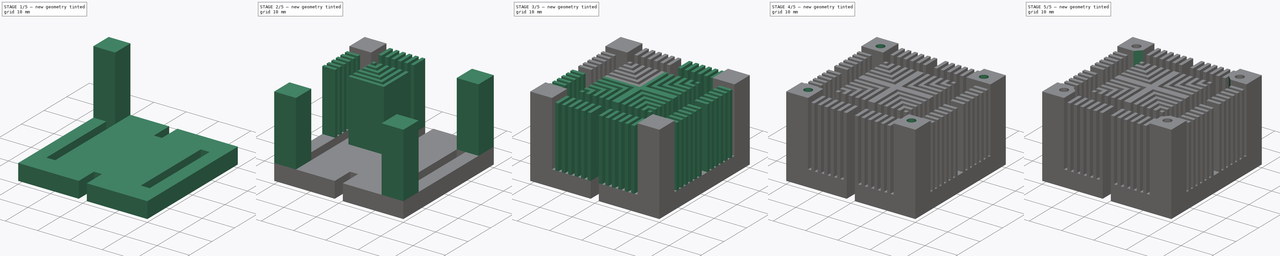
[diagram: build sequence overview — one tinted view per stage of 5, left to right]
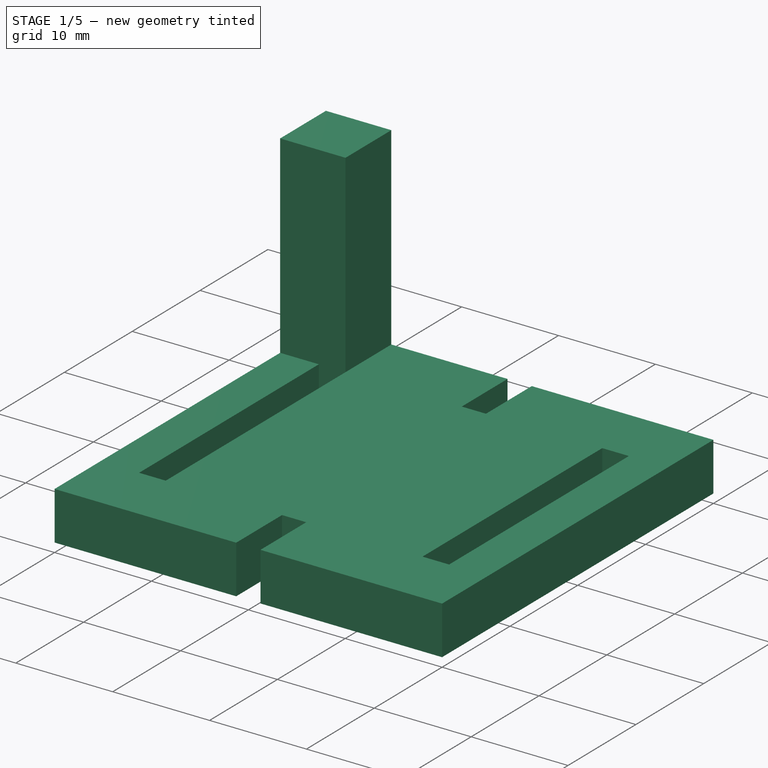
[diagram: stage 1 of 5 — iso view after this stage's code; geometry added in this stage tinted green]
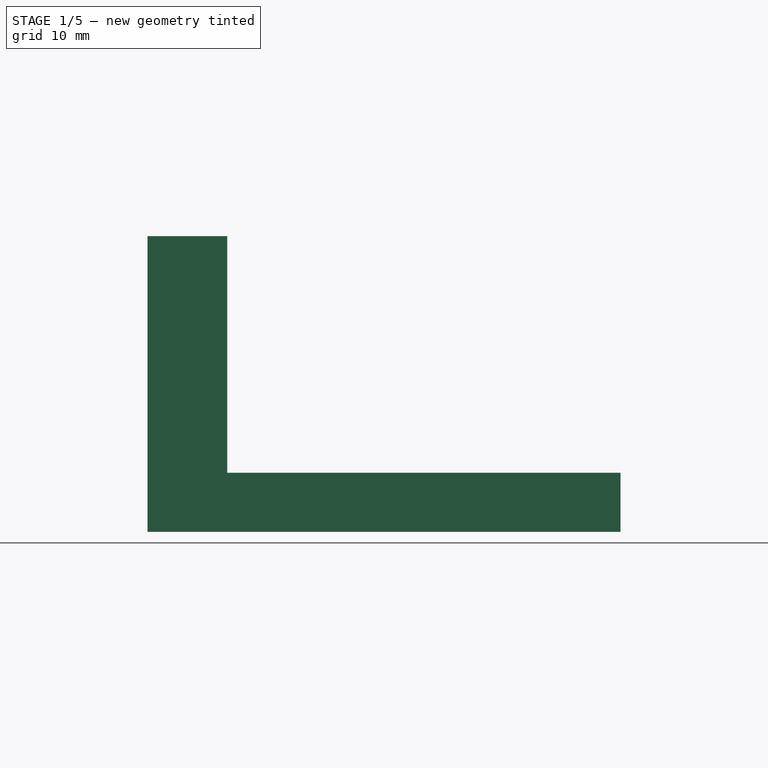
[diagram: stage 1 of 5 — front view after this stage's code; geometry added in this stage tinted green]
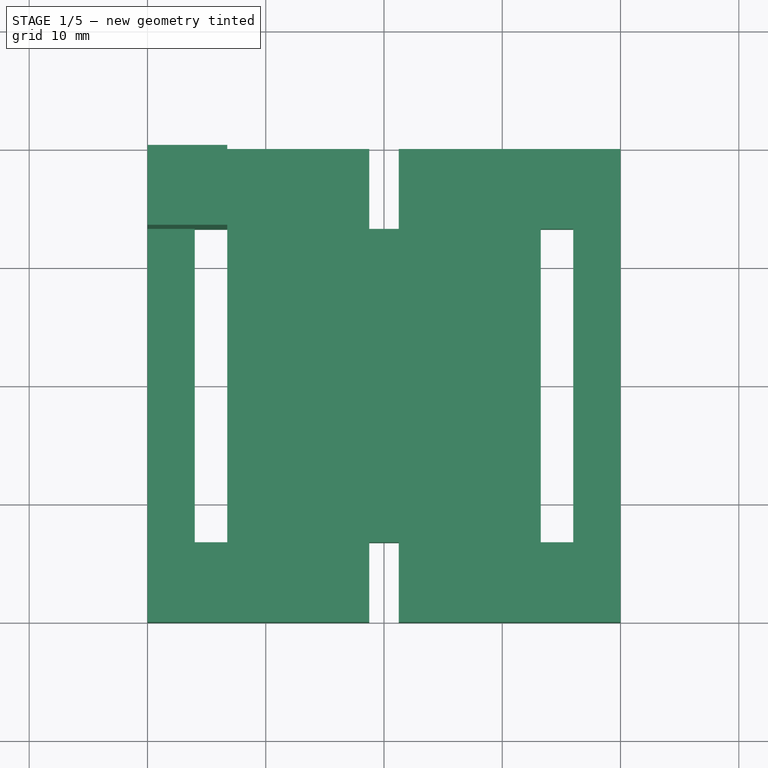
[diagram: stage 1 of 5 — top view after this stage's code; geometry added in this stage tinted green]
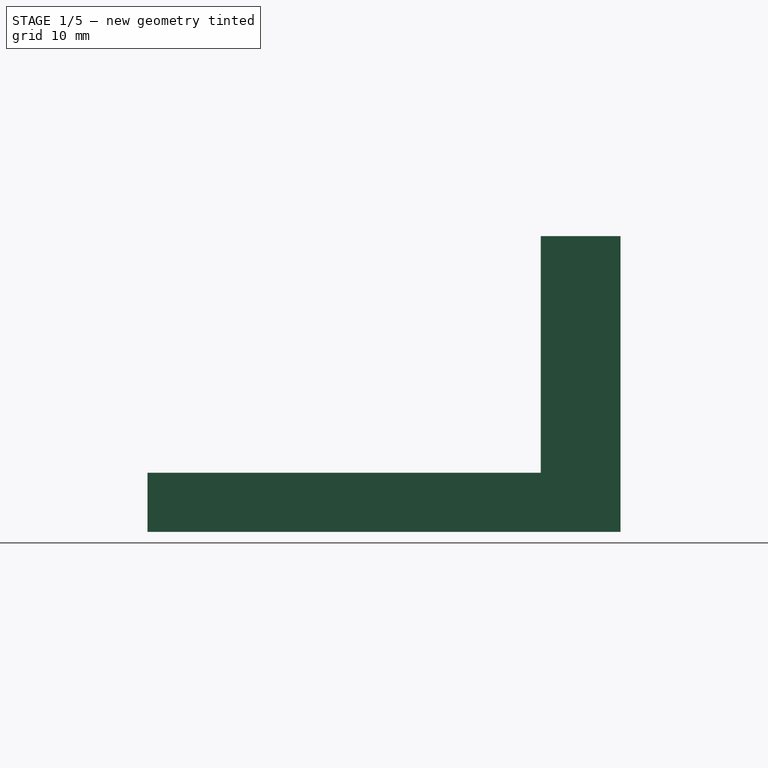
[diagram: stage 1 of 5 — right view after this stage's code; geometry added in this stage tinted green]
FCSTD DOCUMENT  (FreeCAD 0.20R29603 (Git))
Label: HiFiveUnmatchedHeatsink
License: All rights reserved
LicenseURL: http://en.wikipedia.org/wiki/All_rights_reserved
objects: Sketcher::SketchObject×19, PartDesign::Pad×9, PartDesign::Pocket×6, PartDesign::Hole×4, PartDesign::Body×1
note: 58 computed .brp shape members not serialized (recipe doc carries the construction recipe); baked Part::Feature solids carry a one-line shape summary decoded from their .brp

FEATURE [Sketcher::SketchObject] Sketch014
  FullyConstrained = true
  MapMode = 5
  Support = -> [XY_Plane002]
  sketch-geometry (12):
    g0: LineSegment StartX=-1.25 StartY=-13.25 StartZ=0 EndX=-1.25 EndY=-20 EndZ=0
    g1: LineSegment StartX=-1.25 StartY=-20 StartZ=0 EndX=-20 EndY=-20 EndZ=0
    g2: LineSegment StartX=-20 StartY=-20 StartZ=0 EndX=-20 EndY=20 EndZ=0
    g3: LineSegment StartX=-20 StartY=20 StartZ=0 EndX=-1.25 EndY=20 EndZ=0
    g4: LineSegment StartX=-1.25 StartY=20 StartZ=0 EndX=-1.25 EndY=13.25 EndZ=0
    g5: LineSegment StartX=-1.25 StartY=13.25 StartZ=0 EndX=1.25 EndY=13.25 EndZ=0
    g6: LineSegment StartX=1.25 StartY=13.25 StartZ=0 EndX=1.25 EndY=20 EndZ=0
    g7: LineSegment StartX=1.25 StartY=20 StartZ=0 EndX=20 EndY=20 EndZ=0
    g8: LineSegment StartX=20 StartY=20 StartZ=0 EndX=20 EndY=-20 EndZ=0
    g9: LineSegment StartX=20 StartY=-20 StartZ=0 EndX=1.25 EndY=-20 EndZ=0
    g10: LineSegment StartX=-1.25 StartY=-13.25 StartZ=0 EndX=1.25 EndY=-13.25 EndZ=0
    g11: LineSegment StartX=1.25 StartY=-13.25 StartZ=0 EndX=1.25 EndY=-20 EndZ=0
  constraints (36):
    c: Vertical(g0)
    c: Coincident(g0,g1)
    c: Horizontal(g1)
    c: Coincident(g1,g2)
    c: Vertical(g2)
    c: Coincident(g2,g3)
    c: Horizontal(g3)
    c: Coincident(g3,g4)
    c: Vertical(g4)
    c: Coincident(g4,g5)
    c: Horizontal(g5)
    c: Coincident(g5,g6)
    c: Vertical(g6)
    c: Coincident(g6,g7)
    c: Horizontal(g7)
    c: Coincident(g7,g8)
    c: Vertical(g8)
    c: Coincident(g8,g9)
    c: Horizontal(g9)
    c: Coincident(g0,g10)
    c: Horizontal(g10)
    c: Coincident(g10,g11)
    c: Coincident(g11,g9)
    c: Vertical(g11)
    c: DistanceX(g4,g-1) = 1.25
    c: DistanceX(g-1,g5) = 1.25
    c: DistanceX(g7,g7) = 18.75
    c: DistanceX(g3,g3) = 18.75
    c: DistanceX(g1,g1) = 18.75
    c: DistanceX(g10,g10) = 2.5
    c: DistanceY(g2,g2) = 40
    c: DistanceY(g6,g6) = 6.75
    c: DistanceY(g4,g4) = -6.75
    c: DistanceY(g0,g0) = 6.75
    c: DistanceY(g8,g8) = 40
    c: DistanceY(g-1,g3) = 20
FEATURE [PartDesign::Pad] Pad009
  Direction = (0,0,1)
  Length = 5
  Length2 = 10
  Profile = -> Sketch014
  ReferenceAxis = -> Sketch014 [N_Axis]
  Type = 0
FEATURE [Sketcher::SketchObject] Sketch015
  FullyConstrained = true
  MapMode = 5
  Placement = pos=(0,0,5) rot=(0,0,1;0rad)
  Support = -> [Pad009]
  sketch-geometry (4):
    g0: LineSegment StartX=-16 StartY=13.25 StartZ=0 EndX=-13.25 EndY=13.25 EndZ=0
    g1: LineSegment StartX=-13.25 StartY=13.25 StartZ=0 EndX=-13.25 EndY=-13.25 EndZ=0
    g2: LineSegment StartX=-13.25 StartY=-13.25 StartZ=0 EndX=-16 EndY=-13.25 EndZ=0
    g3: LineSegment StartX=-16 StartY=-13.25 StartZ=0 EndX=-16 EndY=13.25 EndZ=0
  constraints (12):
    c: Coincident(g0,g1)
    c: Coincident(g1,g2)
    c: Coincident(g2,g3)
    c: Coincident(g3,g0)
    c: Horizontal(g0)
    c: Horizontal(g2)
    c: Vertical(g1)
    c: Vertical(g3)
    c: DistanceX(g1,g-1) = 13.25
    c: DistanceY(g1,g-1) = 13.25
    c: DistanceY(g3,g3) = 26.5
    c: DistanceX(g0,g-1) = 16
FEATURE [Sketcher::SketchObject] MirroredSketch
  FullyConstrained = false
  Placement = pos=(0,0,5) rot=(0,0,1;0rad)
  sketch-geometry (4):
    g0: LineSegment StartX=16 StartY=13.25 StartZ=0 EndX=13.25 EndY=13.25 EndZ=0
    g1: LineSegment StartX=13.25 StartY=13.25 StartZ=0 EndX=13.25 EndY=-13.25 EndZ=0
    g2: LineSegment StartX=13.25 StartY=-13.25 StartZ=0 EndX=16 EndY=-13.25 EndZ=0
    g3: LineSegment StartX=16 StartY=-13.25 StartZ=0 EndX=16 EndY=13.25 EndZ=0
  constraints (8):
    c: Coincident(g0,g1)
    c: Coincident(g1,g2)
    c: Coincident(g2,g3)
    c: Coincident(g3,g0)
    c: Horizontal(g0)
    c: Horizontal(g2)
    c: Vertical(g1)
    c: Vertical(g3)
FEATURE [PartDesign::Pocket] Pocket
  BaseFeature = -> Pad009
  Direction = (0,0,-1)
  Length = 5
  Length2 = 5
  Profile = -> Sketch015
  ReferenceAxis = -> Sketch015 [N_Axis]
  Type = 0
FEATURE [PartDesign::Pocket] Pocket001
  BaseFeature = -> Pocket
  Direction = (0,0,-1)
  Length = 5
  Length2 = 5
  Profile = -> MirroredSketch
  ReferenceAxis = -> MirroredSketch [N_Axis]
  Type = 0
FEATURE [Sketcher::SketchObject] Sketch016
  FullyConstrained = true
  MapMode = 5
  Placement = pos=(0,0,5) rot=(0,0,1;0rad)
  Support = -> [Pad009]
  sketch-geometry (4):
    g0: LineSegment StartX=-20 StartY=20 StartZ=0 EndX=-13.25 EndY=20 EndZ=0
    g1: LineSegment StartX=-13.25 StartY=20 StartZ=0 EndX=-13.25 EndY=13.25 EndZ=0
    g2: LineSegment StartX=-13.25 StartY=13.25 StartZ=0 EndX=-20 EndY=13.25 EndZ=0
    g3: LineSegment StartX=-20 StartY=13.25 StartZ=0 EndX=-20 EndY=20 EndZ=0
  constraints (12):
    c: Coincident(g0,g1)
    c: Coincident(g1,g2)
    c: Coincident(g2,g3)
    c: Coincident(g3,g0)
    c: Horizontal(g0)
    c: Horizontal(g2)
    c: Vertical(g1)
    c: Vertical(g3)
    c: DistanceY(g-1,g1) = 13.25
    c: DistanceX(g1,g-1) = 13.25
    c: DistanceY(g1,g1) = 6.75
    c: DistanceX(g2,g2) = 6.75
FEATURE [Sketcher::SketchObject] MirroredSketch001
  FullyConstrained = false
  Placement = pos=(0,0,5) rot=(0,0,1;0rad)
  sketch-geometry (4):
    g0: LineSegment StartX=20 StartY=20 StartZ=0 EndX=13.25 EndY=20 EndZ=0
    g1: LineSegment StartX=13.25 StartY=20 StartZ=0 EndX=13.25 EndY=13.25 EndZ=0
    g2: LineSegment StartX=13.25 StartY=13.25 StartZ=0 EndX=20 EndY=13.25 EndZ=0
    g3: LineSegment StartX=20 StartY=13.25 StartZ=0 EndX=20 EndY=20 EndZ=0
  constraints (8):
    c: Coincident(g0,g1)
    c: Coincident(g1,g2)
    c: Coincident(g2,g3)
    c: Coincident(g3,g0)
    c: Horizontal(g0)
    c: Horizontal(g2)
    c: Vertical(g1)
    c: Vertical(g3)
FEATURE [Sketcher::SketchObject] MirroredSketch002
  FullyConstrained = false
  Placement = pos=(0,0,5) rot=(0,0,1;0rad)
  sketch-geometry (4):
    g0: LineSegment StartX=20 StartY=-20 StartZ=0 EndX=13.25 EndY=-20 EndZ=0
    g1: LineSegment StartX=13.25 StartY=-20 StartZ=0 EndX=13.25 EndY=-13.25 EndZ=0
    g2: LineSegment StartX=13.25 StartY=-13.25 StartZ=0 EndX=20 EndY=-13.25 EndZ=0
    g3: LineSegment StartX=20 StartY=-13.25 StartZ=0 EndX=20 EndY=-20 EndZ=0
  constraints (8):
    c: Coincident(g0,g1)
    c: Coincident(g1,g2)
    c: Coincident(g2,g3)
    c: Coincident(g3,g0)
    c: Horizontal(g0)
    c: Horizontal(g2)
    c: Vertical(g1)
    c: Vertical(g3)
FEATURE [Sketcher::SketchObject] MirroredSketch003
  FullyConstrained = false
  Placement = pos=(0,0,5) rot=(0,0,1;0rad)
  sketch-geometry (4):
    g0: LineSegment StartX=-20 StartY=-20 StartZ=0 EndX=-13.25 EndY=-20 EndZ=0
    g1: LineSegment StartX=-13.25 StartY=-20 StartZ=0 EndX=-13.25 EndY=-13.25 EndZ=0
    g2: LineSegment StartX=-13.25 StartY=-13.25 StartZ=0 EndX=-20 EndY=-13.25 EndZ=0
    g3: LineSegment StartX=-20 StartY=-13.25 StartZ=0 EndX=-20 EndY=-20 EndZ=0
  constraints (8):
    c: Coincident(g0,g1)
    c: Coincident(g1,g2)
    c: Coincident(g2,g3)
    c: Coincident(g3,g0)
    c: Horizontal(g0)
    c: Horizontal(g2)
    c: Vertical(g1)
    c: Vertical(g3)
FEATURE [PartDesign::Pad] Pad010
  BaseFeature = -> Pocket001
  Direction = (0,0,1)
  Length = 20
  Length2 = 10
  Profile = -> Sketch016
  ReferenceAxis = -> Sketch016 [N_Axis]
  Type = 0
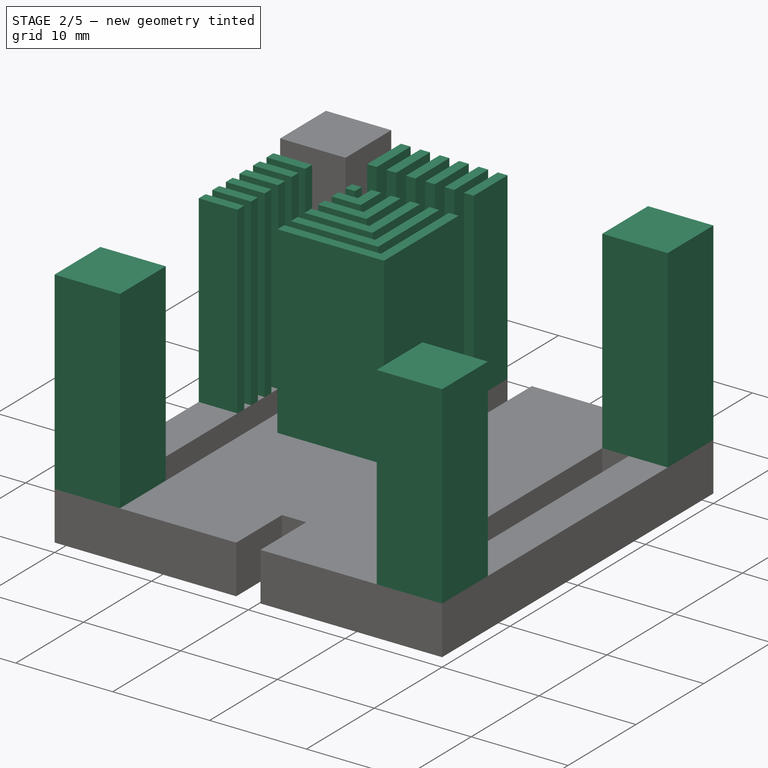
[diagram: stage 2 of 5 — iso view after this stage's code; geometry added in this stage tinted green]
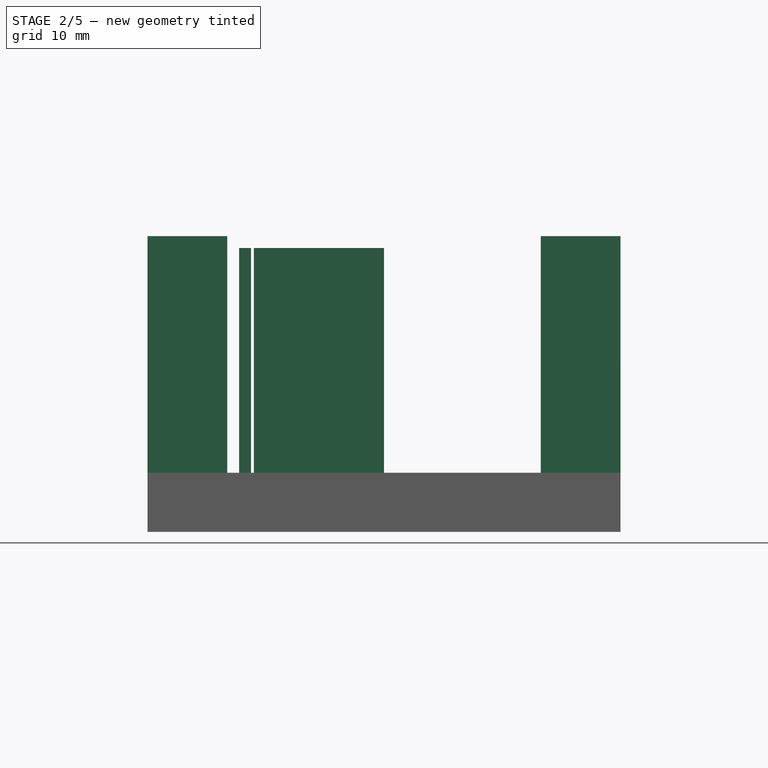
[diagram: stage 2 of 5 — front view after this stage's code; geometry added in this stage tinted green]
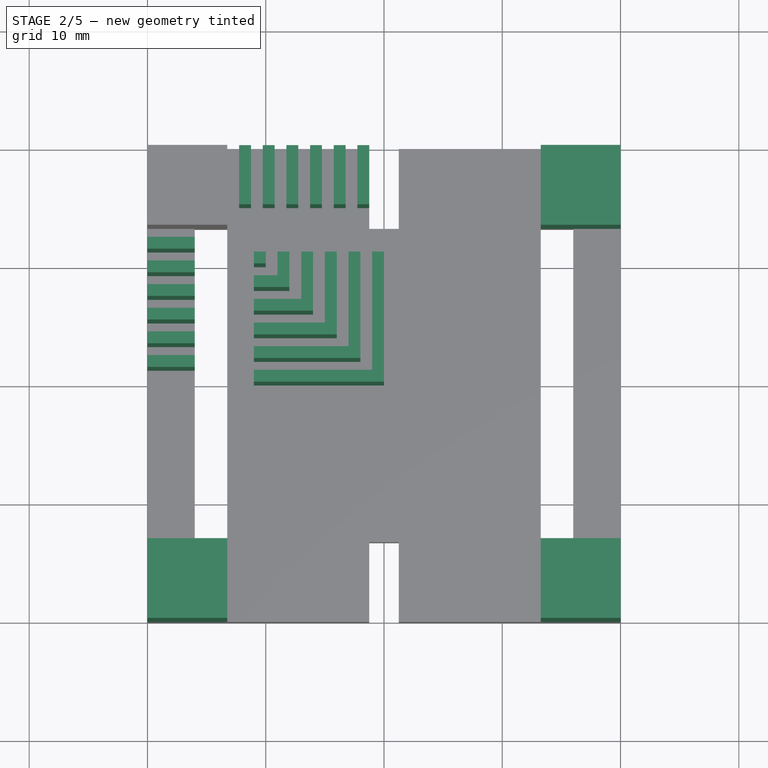
[diagram: stage 2 of 5 — top view after this stage's code; geometry added in this stage tinted green]
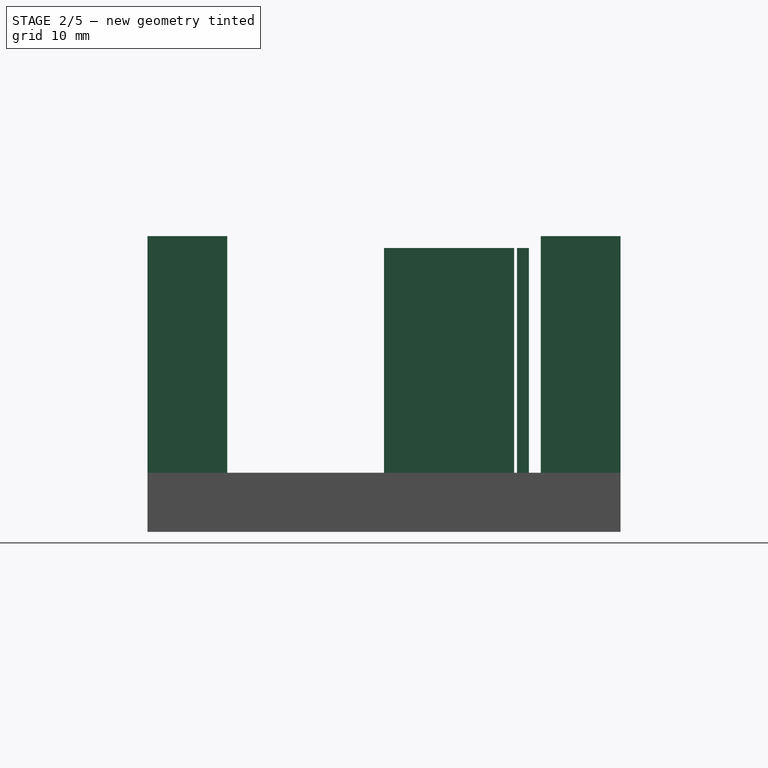
[diagram: stage 2 of 5 — right view after this stage's code; geometry added in this stage tinted green]
FEATURE [PartDesign::Pad] Pad011
  BaseFeature = -> Pad010
  Direction = (0,0,1)
  Length = 20
  Length2 = 10
  Profile = -> MirroredSketch001
  ReferenceAxis = -> MirroredSketch001 [N_Axis]
  Type = 0
FEATURE [PartDesign::Pad] Pad012
  BaseFeature = -> Pad011
  Direction = (0,0,1)
  Length = 20
  Length2 = 10
  Profile = -> MirroredSketch002
  ReferenceAxis = -> MirroredSketch002 [N_Axis]
  Type = 0
FEATURE [PartDesign::Pad] Pad013
  BaseFeature = -> Pad012
  Direction = (0,0,1)
  Length = 20
  Length2 = 10
  Profile = -> MirroredSketch003
  ReferenceAxis = -> MirroredSketch003 [N_Axis]
  Type = 0
FEATURE [Sketcher::SketchObject] Sketch017
  FullyConstrained = true
  MapMode = 5
  Placement = pos=(0,0,5) rot=(0,0,1;0rad)
  Support = -> [Pad009]
  sketch-geometry (82):
    g0: LineSegment StartX=-20 StartY=12.25 StartZ=0 EndX=-16 EndY=12.25 EndZ=0
    g1: LineSegment StartX=-16 StartY=12.25 StartZ=0 EndX=-16 EndY=11.25 EndZ=0
    g2: LineSegment StartX=-16 StartY=11.25 StartZ=0 EndX=-20 EndY=11.25 EndZ=0
    g3: LineSegment StartX=-20 StartY=11.25 StartZ=0 EndX=-20 EndY=12.25 EndZ=0
    g4: LineSegment StartX=-20 StartY=10.25 StartZ=0 EndX=-16 EndY=10.25 EndZ=0
    g5: LineSegment StartX=-16 StartY=10.25 StartZ=0 EndX=-16 EndY=9.25 EndZ=0
    g6: LineSegment StartX=-16 StartY=9.25 StartZ=0 EndX=-20 EndY=9.25 EndZ=0
    g7: LineSegment StartX=-20 StartY=9.25 StartZ=0 EndX=-20 EndY=10.25 EndZ=0
    g8: LineSegment StartX=-20 StartY=8.25 StartZ=0 EndX=-16 EndY=8.25 EndZ=0
    g9: LineSegment StartX=-16 StartY=8.25 StartZ=0 EndX=-16 EndY=7.25 EndZ=0
    g10: LineSegment StartX=-16 StartY=7.25 StartZ=0 EndX=-20 EndY=7.25 EndZ=0
    g11: LineSegment StartX=-20 StartY=7.25 StartZ=0 EndX=-20 EndY=8.25 EndZ=0
    g12: LineSegment StartX=-20 StartY=6.25 StartZ=0 EndX=-16 EndY=6.25 EndZ=0
    g13: LineSegment StartX=-16 StartY=6.25 StartZ=0 EndX=-16 EndY=5.25 EndZ=0
    g14: LineSegment StartX=-16 StartY=5.25 StartZ=0 EndX=-20 EndY=5.25 EndZ=0
    g15: LineSegment StartX=-20 StartY=5.25 StartZ=0 EndX=-20 EndY=6.25 EndZ=0
    g16: LineSegment StartX=-2.25 StartY=20 StartZ=0 EndX=-1.25 EndY=20 EndZ=0
    g17: LineSegment StartX=-1.25 StartY=20 StartZ=0 EndX=-1.25 EndY=15 EndZ=0
    g18: LineSegment StartX=-1.25 StartY=15 StartZ=0 EndX=-2.25 EndY=15 EndZ=0
    g19: LineSegment StartX=-2.25 StartY=15 StartZ=0 EndX=-2.25 EndY=20 EndZ=0
    g20: LineSegment StartX=-4.25 StartY=20 StartZ=0 EndX=-3.25 EndY=20 EndZ=0
    g21: LineSegment StartX=-3.25 StartY=20 StartZ=0 EndX=-3.25 EndY=15 EndZ=0
    g22: LineSegment StartX=-3.25 StartY=15 StartZ=0 EndX=-4.25 EndY=15 EndZ=0
    g23: LineSegment StartX=-4.25 StartY=15 StartZ=0 EndX=-4.25 EndY=20 EndZ=0
    g24: LineSegment StartX=-6.25 StartY=20 StartZ=0 EndX=-5.25 EndY=20 EndZ=0
    g25: LineSegment StartX=-5.25 StartY=20 StartZ=0 EndX=-5.25 EndY=15 EndZ=0
    g26: LineSegment StartX=-5.25 StartY=15 StartZ=0 EndX=-6.25 EndY=15 EndZ=0
    g27: LineSegment StartX=-6.25 StartY=15 StartZ=0 EndX=-6.25 EndY=20 EndZ=0
    g28: LineSegment StartX=-8.25 StartY=20 StartZ=0 EndX=-7.25 EndY=20 EndZ=0
    g29: LineSegment StartX=-7.25 StartY=20 StartZ=0 EndX=-7.25 EndY=15 EndZ=0
    g30: LineSegment StartX=-7.25 StartY=15 StartZ=0 EndX=-8.25 EndY=15 EndZ=0
    g31: LineSegment StartX=-8.25 StartY=15 StartZ=0 EndX=-8.25 EndY=20 EndZ=0
    g32: LineSegment StartX=-10.25 StartY=20 StartZ=0 EndX=-9.25 EndY=20 EndZ=0
    g33: LineSegment StartX=-9.25 StartY=20 StartZ=0 EndX=-9.25 EndY=15 EndZ=0
    g34: LineSegment StartX=-9.25 StartY=15 StartZ=0 EndX=-10.25 EndY=15 EndZ=0
    g35: LineSegment StartX=-10.25 StartY=15 StartZ=0 EndX=-10.25 EndY=20 EndZ=0
    g36: LineSegment StartX=-12.25 StartY=20 StartZ=0 EndX=-11.25 EndY=20 EndZ=0
    g37: LineSegment StartX=-11.25 StartY=20 StartZ=0 EndX=-11.25 EndY=15 EndZ=0
    g38: LineSegment StartX=-11.25 StartY=15 StartZ=0 EndX=-12.25 EndY=15 EndZ=0
    g39: LineSegment StartX=-12.25 StartY=15 StartZ=0 EndX=-12.25 EndY=20 EndZ=0
    g40: LineSegment StartX=-20 StartY=4.25 StartZ=0 EndX=-16 EndY=4.25 EndZ=0
    g41: LineSegment StartX=-16 StartY=4.25 StartZ=0 EndX=-16 EndY=3.25 EndZ=0
    g42: LineSegment StartX=-16 StartY=3.25 StartZ=0 EndX=-20 EndY=3.25 EndZ=0
    g43: LineSegment StartX=-20 StartY=3.25 StartZ=0 EndX=-20 EndY=4.25 EndZ=0
    g44: LineSegment StartX=-20 StartY=2.25 StartZ=0 EndX=-16 EndY=2.25 EndZ=0
    g45: LineSegment StartX=-16 StartY=2.25 StartZ=0 EndX=-16 EndY=1.25 EndZ=0
    g46: LineSegment StartX=-16 StartY=1.25 StartZ=0 EndX=-20 EndY=1.25 EndZ=0
    g47: LineSegment StartX=-20 StartY=1.25 StartZ=0 EndX=-20 EndY=2.25 EndZ=0
    g48: LineSegment StartX=-1 StartY=1 StartZ=0 EndX=-1 EndY=11 EndZ=0
    g49: LineSegment StartX=-1 StartY=11 StartZ=0 EndX=0 EndY=11 EndZ=0
    g50: LineSegment StartX=0 StartY=11 StartZ=0 EndX=0 EndY=0 EndZ=0
    g51: LineSegment StartX=0 StartY=0 StartZ=0 EndX=-11 EndY=0 EndZ=0
    g52: LineSegment StartX=-11 StartY=0 StartZ=0 EndX=-11 EndY=1 EndZ=0
    g53: LineSegment StartX=-11 StartY=1 StartZ=0 EndX=-1 EndY=1 EndZ=0
    g54: LineSegment StartX=-3 StartY=11 StartZ=0 EndX=-2 EndY=11 EndZ=0
    g55: LineSegment StartX=-2 StartY=11 StartZ=0 EndX=-2 EndY=2 EndZ=0
    g56: LineSegment StartX=-2 StartY=2 StartZ=0 EndX=-11 EndY=2 EndZ=0
    g57: LineSegment StartX=-11 StartY=2 StartZ=0 EndX=-11 EndY=3 EndZ=0
    g58: LineSegment StartX=-11 StartY=3 StartZ=0 EndX=-3 EndY=3 EndZ=0
    g59: LineSegment StartX=-3 StartY=3 StartZ=0 EndX=-3 EndY=11 EndZ=0
    g60: LineSegment StartX=-11 StartY=5 StartZ=0 EndX=-11 EndY=4 EndZ=0
    g61: LineSegment StartX=-11 StartY=4 StartZ=0 EndX=-4 EndY=4 EndZ=0
    g62: LineSegment StartX=-4 StartY=4 StartZ=0 EndX=-4 EndY=11 EndZ=0
    g63: LineSegment StartX=-4 StartY=11 StartZ=0 EndX=-5 EndY=11 EndZ=0
    g64: LineSegment StartX=-5 StartY=11 StartZ=0 EndX=-5 EndY=5 EndZ=0
    g65: LineSegment StartX=-5 StartY=5 StartZ=0 EndX=-11 EndY=5 EndZ=0
    g66: LineSegment StartX=-11 StartY=6 StartZ=0 EndX=-6 EndY=6 EndZ=0
    g67: LineSegment StartX=-6 StartY=6 StartZ=0 EndX=-6 EndY=11 EndZ=0
    g68: LineSegment StartX=-6 StartY=11 StartZ=0 EndX=-7 EndY=11 EndZ=0
    g69: LineSegment StartX=-7 StartY=11 StartZ=0 EndX=-7 EndY=7 EndZ=0
    g70: LineSegment StartX=-7 StartY=7 StartZ=0 EndX=-11 EndY=7 EndZ=0
    g71: LineSegment StartX=-11 StartY=7 StartZ=0 EndX=-11 EndY=6 EndZ=0
    g72: LineSegment StartX=-8 StartY=11 StartZ=0 EndX=-8 EndY=8 EndZ=0
    g73: LineSegment StartX=-8 StartY=8 StartZ=0 EndX=-11 EndY=8 EndZ=0
    g74: LineSegment StartX=-11 StartY=8 StartZ=0 EndX=-11 EndY=9 EndZ=0
    g75: LineSegment StartX=-11 StartY=9 StartZ=0 EndX=-9 EndY=9 EndZ=0
    g76: LineSegment StartX=-9 StartY=9 StartZ=0 EndX=-9 EndY=11 EndZ=0
    g77: LineSegment StartX=-9 StartY=11 StartZ=0 EndX=-8 EndY=11 EndZ=0
    g78: LineSegment StartX=-11 StartY=11 StartZ=0 EndX=-10 EndY=11 EndZ=0
    g79: LineSegment StartX=-10 StartY=11 StartZ=0 EndX=-10 EndY=10 EndZ=0
    g80: LineSegment StartX=-10 StartY=10 StartZ=0 EndX=-11 EndY=10 EndZ=0
    g81: LineSegment StartX=-11 StartY=10 StartZ=0 EndX=-11 EndY=11 EndZ=0
  constraints (245):
    c: Coincident(g0,g1)
    c: Coincident(g1,g2)
    c: Coincident(g2,g3)
    c: Coincident(g3,g0)
    c: Horizontal(g0)
    c: Horizontal(g2)
    c: Vertical(g1)
    c: Vertical(g3)
    c: Coincident(g4,g5)
    c: Coincident(g5,g6)
    c: Coincident(g6,g7)
    c: Coincident(g7,g4)
    c: Horizontal(g4)
    c: Horizontal(g6)
    c: Vertical(g5)
    c: Vertical(g7)
    c: Coincident(g8,g9)
    c: Coincident(g9,g10)
    c: Coincident(g10,g11)
    c: Coincident(g11,g8)
    c: Horizontal(g8)
    c: Horizontal(g10)
    c: Vertical(g9)
    c: Vertical(g11)
    c: Coincident(g12,g13)
    c: Coincident(g13,g14)
    c: Coincident(g14,g15)
    c: Coincident(g15,g12)
    c: Horizontal(g12)
    c: Horizontal(g14)
    c: Vertical(g13)
    c: Vertical(g15)
    c: Coincident(g16,g17)
    c: Coincident(g17,g18)
    c: Coincident(g18,g19)
    c: Coincident(g19,g16)
    c: Horizontal(g16)
    c: Horizontal(g18)
    c: Vertical(g17)
    c: Vertical(g19)
    c: Coincident(g20,g21)
    c: Coincident(g21,g22)
    c: Coincident(g22,g23)
    c: Coincident(g23,g20)
    c: Horizontal(g20)
    c: Horizontal(g22)
    c: Vertical(g21)
    c: Vertical(g23)
    c: Coincident(g24,g25)
    c: Coincident(g25,g26)
    c: Coincident(g26,g27)
    c: Coincident(g27,g24)
    c: Horizontal(g24)
    c: Horizontal(g26)
    c: Vertical(g25)
    c: Vertical(g27)
    c: DistanceX(g17,g-1) = 1.25
    c: DistanceX(g16,g16) = 1
    c: DistanceX(g20,g16) = 1
    c: DistanceX(g20,g20) = 1
    c: DistanceX(g24,g24) = 1
    c: DistanceX(g24,g20) = 1
    c: Coincident(g28,g29)
    c: Coincident(g29,g30)
    c: Coincident(g30,g31)
    c: Coincident(g31,g28)
    c: Horizontal(g28)
    c: Horizontal(g30)
    c: Vertical(g29)
    c: Vertical(g31)
    c: Coincident(g32,g33)
    c: Coincident(g33,g34)
    c: Coincident(g34,g35)
    c: Coincident(g35,g32)
    c: Horizontal(g32)
    c: Horizontal(g34)
    c: Vertical(g33)
    c: Vertical(g35)
    c: Coincident(g36,g37)
    c: Coincident(g37,g38)
    c: Coincident(g38,g39)
    c: Coincident(g39,g36)
    c: Horizontal(g36)
    c: Horizontal(g38)
    c: Vertical(g37)
    c: Vertical(g39)
    c: DistanceX(g28,g24) = 1
    c: DistanceX(g28,g28) = 1
    c: DistanceX(g32,g32) = 1
    c: DistanceX(g32,g28) = 1
    c: DistanceX(g36,g32) = 1
    c: DistanceX(g36,g36) = 1
    c: DistanceY(g37,g37) = 5
    c: DistanceY(g33,g33) = 5
    c: DistanceY(g29,g29) = 5
    c: DistanceY(g25,g25) = 5
    c: DistanceY(g21,g21) = 5
    c: DistanceY(g17,g17) = 5
    c: DistanceY(g-1,g17) = 15
    c: DistanceY(g21,g18) = 0
    c: DistanceY(g25,g22) = 0
    c: DistanceY(g29,g26) = 0
    c: DistanceY(g33,g30) = 0
    c: DistanceY(g37,g34) = 0
    c: DistanceY(g-1,g0) = 12.25
    c: DistanceY(g1,g1) = 1
    c: DistanceY(g5,g5) = 1
    c: DistanceY(g9,g9) = 1
    c: DistanceY(g4,g2) = 1
    c: DistanceY(g8,g6) = 1
    c: DistanceY(g12,g10) = 1
    c: DistanceY(g15,g15) = 1
    c: Coincident(g40,g41)
    c: Coincident(g41,g42)
    c: Coincident(g42,g43)
    c: Coincident(g43,g40)
    c: Horizontal(g40)
    c: Horizontal(g42)
    c: Vertical(g41)
    c: Vertical(g43)
    c: Coincident(g44,g45)
    c: Coincident(g45,g46)
    c: Coincident(g46,g47)
    c: Coincident(g47,g44)
    c: Horizontal(g44)
    c: Horizontal(g46)
    c: Vertical(g45)
    c: Vertical(g47)
    c: DistanceY(g43,g43) = 1
    c: DistanceY(g40,g14) = 1
    c: DistanceY(g44,g42) = 1
    c: DistanceY(g47,g47) = 1
    c: DistanceX(g0,g0) = 4
    c: DistanceX(g4,g4) = 4
    c: DistanceX(g8,g8) = 4
    c: DistanceX(g12,g12) = 4
    c: DistanceX(g40,g40) = 4
    c: DistanceX(g44,g44) = 4
    c: DistanceX(g0,g-1) = 16
    c: DistanceX(g1,g4) = 0
    c: DistanceX(g5,g8) = 0
    c: DistanceX(g12,g9) = 0
    c: DistanceX(g13,g40) = 0
    c: DistanceX(g44,g41) = 0
    c: Vertical(g48)
    c: Coincident(g48,g49)
    c: PointOnObject(g49,g-2)
    c: Horizontal(g49)
    c: Coincident(g49,g50)
    c: Coincident(g50,g-1)
    c: Coincident(g50,g51)
    c: PointOnObject(g51,g-1)
    c: Coincident(g51,g52)
    c: Coincident(g52,g53)
    c: Coincident(g53,g48)
    c: Horizontal(g53)
    c: DistanceY(g50,g50) = 11
    c: DistanceY(g52,g52) = 1
    c: DistanceX(g51,g51) = 11
    c: Perpendicular(g51,g52)
    c: DistanceX(g49,g49) = 1
    c: Horizontal(g54)
    c: Coincident(g54,g55)
    c: Vertical(g55)
    c: Coincident(g55,g56)
    c: Horizontal(g56)
    c: Coincident(g56,g57)
    c: Vertical(g57)
    c: Coincident(g57,g58)
    c: Horizontal(g58)
    c: Coincident(g58,g59)
    c: Coincident(g59,g54)
    c: Vertical(g59)
    c: DistanceX(g54,g54) = 1
    c: DistanceX(g56,g56) = 9
    c: DistanceY(g57,g57) = 1
    c: DistanceY(g55,g55) = 9
    c: DistanceX(g54,g48) = 1
    c: DistanceY(g48,g54) = 0
    c: Vertical(g60)
    c: Coincident(g60,g61)
    c: Horizontal(g61)
    c: Coincident(g61,g62)
    c: Vertical(g62)
    c: Coincident(g62,g63)
    c: Horizontal(g63)
    c: Coincident(g63,g64)
    c: Vertical(g64)
    c: Coincident(g64,g65)
    c: Coincident(g65,g60)
    c: Horizontal(g65)
    c: Horizontal(g66)
    c: Coincident(g66,g67)
    c: Vertical(g67)
    c: Coincident(g67,g68)
    c: Horizontal(g68)
    c: Coincident(g68,g69)
    c: Vertical(g69)
    c: Coincident(g69,g70)
    c: Horizontal(g70)
    c: Coincident(g70,g71)
    c: Coincident(g71,g66)
    c: Vertical(g71)
    c: DistanceX(g63,g63) = 1
    c: DistanceX(g61,g61) = 7
    c: DistanceX(g66,g66) = 5
    c: DistanceX(g68,g68) = 1
    c: DistanceY(g60,g60) = 1
    c: DistanceY(g62,g62) = 7
    c: DistanceY(g71,g71) = 1
    c: DistanceY(g67,g67) = 5
    c: DistanceY(g54,g67) = 0
    c: DistanceY(g62,g54) = 0
    c: DistanceX(g62,g54) = 1
    c: DistanceX(g67,g63) = 1
    c: Vertical(g72)
    c: Coincident(g72,g73)
    c: Horizontal(g73)
    c: Coincident(g73,g74)
    c: Vertical(g74)
    c: Coincident(g74,g75)
    c: Horizontal(g75)
    c: Coincident(g75,g76)
    c: Vertical(g76)
    c: Coincident(g76,g77)
    c: Coincident(g77,g72)
    c: Horizontal(g77)
    c: Coincident(g78,g79)
    c: Coincident(g79,g80)
    c: Coincident(g80,g81)
    c: Coincident(g81,g78)
    c: Horizontal(g78)
    c: Horizontal(g80)
    c: Vertical(g79)
    c: Vertical(g81)
    c: DistanceX(g78,g78) = 1
    c: DistanceX(g77,g77) = 1
    c: DistanceX(g73,g73) = 3
    c: DistanceY(g79,g79) = 1
    c: DistanceY(g72,g72) = 3
    c: DistanceY(g74,g74) = 1
    c: DistanceY(g72,g68) = 0
    c: DistanceY(g78,g76) = 0
    c: DistanceX(g72,g68) = 1
    c: DistanceX(g78,g76) = 1
FEATURE [Sketcher::SketchObject] MirroredSketch004
  FullyConstrained = false
  Placement = pos=(0,0,5) rot=(0,0,1;0rad)
  sketch-geometry (82):
    g0: LineSegment StartX=-20 StartY=-12.25 StartZ=0 EndX=-16 EndY=-12.25 EndZ=0
    g1: LineSegment StartX=-16 StartY=-12.25 StartZ=0 EndX=-16 EndY=-11.25 EndZ=0
    g2: LineSegment StartX=-16 StartY=-11.25 StartZ=0 EndX=-20 EndY=-11.25 EndZ=0
    g3: LineSegment StartX=-20 StartY=-11.25 StartZ=0 EndX=-20 EndY=-12.25 EndZ=0
    g4: LineSegment StartX=-20 StartY=-10.25 StartZ=0 EndX=-16 EndY=-10.25 EndZ=0
    g5: LineSegment StartX=-16 StartY=-10.25 StartZ=0 EndX=-16 EndY=-9.25 EndZ=0
    g6: LineSegment StartX=-16 StartY=-9.25 StartZ=0 EndX=-20 EndY=-9.25 EndZ=0
    g7: LineSegment StartX=-20 StartY=-9.25 StartZ=0 EndX=-20 EndY=-10.25 EndZ=0
    g8: LineSegment StartX=-20 StartY=-8.25 StartZ=0 EndX=-16 EndY=-8.25 EndZ=0
    g9: LineSegment StartX=-16 StartY=-8.25 StartZ=0 EndX=-16 EndY=-7.25 EndZ=0
    g10: LineSegment StartX=-16 StartY=-7.25 StartZ=0 EndX=-20 EndY=-7.25 EndZ=0
    g11: LineSegment StartX=-20 StartY=-7.25 StartZ=0 EndX=-20 EndY=-8.25 EndZ=0
    g12: LineSegment StartX=-20 StartY=-6.25 StartZ=0 EndX=-16 EndY=-6.25 EndZ=0
    g13: LineSegment StartX=-16 StartY=-6.25 StartZ=0 EndX=-16 EndY=-5.25 EndZ=0
    g14: LineSegment StartX=-16 StartY=-5.25 StartZ=0 EndX=-20 EndY=-5.25 EndZ=0
    g15: LineSegment StartX=-20 StartY=-5.25 StartZ=0 EndX=-20 EndY=-6.25 EndZ=0
    g16: LineSegment StartX=-2.25 StartY=-20 StartZ=0 EndX=-1.25 EndY=-20 EndZ=0
    g17: LineSegment StartX=-1.25 StartY=-20 StartZ=0 EndX=-1.25 EndY=-15 EndZ=0
    g18: LineSegment StartX=-1.25 StartY=-15 StartZ=0 EndX=-2.25 EndY=-15 EndZ=0
    g19: LineSegment StartX=-2.25 StartY=-15 StartZ=0 EndX=-2.25 EndY=-20 EndZ=0
    g20: LineSegment StartX=-4.25 StartY=-20 StartZ=0 EndX=-3.25 EndY=-20 EndZ=0
    g21: LineSegment StartX=-3.25 StartY=-20 StartZ=0 EndX=-3.25 EndY=-15 EndZ=0
    g22: LineSegment StartX=-3.25 StartY=-15 StartZ=0 EndX=-4.25 EndY=-15 EndZ=0
    g23: LineSegment StartX=-4.25 StartY=-15 StartZ=0 EndX=-4.25 EndY=-20 EndZ=0
    g24: LineSegment StartX=-6.25 StartY=-20 StartZ=0 EndX=-5.25 EndY=-20 EndZ=0
    g25: LineSegment StartX=-5.25 StartY=-20 StartZ=0 EndX=-5.25 EndY=-15 EndZ=0
    g26: LineSegment StartX=-5.25 StartY=-15 StartZ=0 EndX=-6.25 EndY=-15 EndZ=0
    g27: LineSegment StartX=-6.25 StartY=-15 StartZ=0 EndX=-6.25 EndY=-20 EndZ=0
    g28: LineSegment StartX=-8.25 StartY=-20 StartZ=0 EndX=-7.25 EndY=-20 EndZ=0
    g29: LineSegment StartX=-7.25 StartY=-20 StartZ=0 EndX=-7.25 EndY=-15 EndZ=0
    g30: LineSegment StartX=-7.25 StartY=-15 StartZ=0 EndX=-8.25 EndY=-15 EndZ=0
    g31: LineSegment StartX=-8.25 StartY=-15 StartZ=0 EndX=-8.25 EndY=-20 EndZ=0
    g32: LineSegment StartX=-10.25 StartY=-20 StartZ=0 EndX=-9.25 EndY=-20 EndZ=0
    g33: LineSegment StartX=-9.25 StartY=-20 StartZ=0 EndX=-9.25 EndY=-15 EndZ=0
    g34: LineSegment StartX=-9.25 StartY=-15 StartZ=0 EndX=-10.25 EndY=-15 EndZ=0
    g35: LineSegment StartX=-10.25 StartY=-15 StartZ=0 EndX=-10.25 EndY=-20 EndZ=0
    g36: LineSegment StartX=-12.25 StartY=-20 StartZ=0 EndX=-11.25 EndY=-20 EndZ=0
    g37: LineSegment StartX=-11.25 StartY=-20 StartZ=0 EndX=-11.25 EndY=-15 EndZ=0
    g38: LineSegment StartX=-11.25 StartY=-15 StartZ=0 EndX=-12.25 EndY=-15 EndZ=0
    g39: LineSegment StartX=-12.25 StartY=-15 StartZ=0 EndX=-12.25 EndY=-20 EndZ=0
    g40: LineSegment StartX=-20 StartY=-4.25 StartZ=0 EndX=-16 EndY=-4.25 EndZ=0
    g41: LineSegment StartX=-16 StartY=-4.25 StartZ=0 EndX=-16 EndY=-3.25 EndZ=0
    g42: LineSegment StartX=-16 StartY=-3.25 StartZ=0 EndX=-20 EndY=-3.25 EndZ=0
    g43: LineSegment StartX=-20 StartY=-3.25 StartZ=0 EndX=-20 EndY=-4.25 EndZ=0
    g44: LineSegment StartX=-20 StartY=-2.25 StartZ=0 EndX=-16 EndY=-2.25 EndZ=0
    g45: LineSegment StartX=-16 StartY=-2.25 StartZ=0 EndX=-16 EndY=-1.25 EndZ=0
    g46: LineSegment StartX=-16 StartY=-1.25 StartZ=0 EndX=-20 EndY=-1.25 EndZ=0
    g47: LineSegment StartX=-20 StartY=-1.25 StartZ=0 EndX=-20 EndY=-2.25 EndZ=0
    g48: LineSegment StartX=-1 StartY=-1 StartZ=0 EndX=-1 EndY=-11 EndZ=0
    g49: LineSegment StartX=-1 StartY=-11 StartZ=0 EndX=0 EndY=-11 EndZ=0
    g50: LineSegment StartX=0 StartY=-11 StartZ=0 EndX=0 EndY=0 EndZ=0
    g51: LineSegment StartX=0 StartY=0 StartZ=0 EndX=-11 EndY=0 EndZ=0
    g52: LineSegment StartX=-11 StartY=0 StartZ=0 EndX=-11 EndY=-1 EndZ=0
    g53: LineSegment StartX=-11 StartY=-1 StartZ=0 EndX=-1 EndY=-1 EndZ=0
    g54: LineSegment StartX=-3 StartY=-11 StartZ=0 EndX=-2 EndY=-11 EndZ=0
    g55: LineSegment StartX=-2 StartY=-11 StartZ=0 EndX=-2 EndY=-2 EndZ=0
    g56: LineSegment StartX=-2 StartY=-2 StartZ=0 EndX=-11 EndY=-2 EndZ=0
    g57: LineSegment StartX=-11 StartY=-2 StartZ=0 EndX=-11 EndY=-3 EndZ=0
    g58: LineSegment StartX=-11 StartY=-3 StartZ=0 EndX=-3 EndY=-3 EndZ=0
    g59: LineSegment StartX=-3 StartY=-3 StartZ=0 EndX=-3 EndY=-11 EndZ=0
    g60: LineSegment StartX=-11 StartY=-5 StartZ=0 EndX=-11 EndY=-4 EndZ=0
    g61: LineSegment StartX=-11 StartY=-4 StartZ=0 EndX=-4 EndY=-4 EndZ=0
    g62: LineSegment StartX=-4 StartY=-4 StartZ=0 EndX=-4 EndY=-11 EndZ=0
    g63: LineSegment StartX=-4 StartY=-11 StartZ=0 EndX=-5 EndY=-11 EndZ=0
    g64: LineSegment StartX=-5 StartY=-11 StartZ=0 EndX=-5 EndY=-5 EndZ=0
    g65: LineSegment StartX=-5 StartY=-5 StartZ=0 EndX=-11 EndY=-5 EndZ=0
    g66: LineSegment StartX=-11 StartY=-6 StartZ=0 EndX=-6 EndY=-6 EndZ=0
    g67: LineSegment StartX=-6 StartY=-6 StartZ=0 EndX=-6 EndY=-11 EndZ=0
    g68: LineSegment StartX=-6 StartY=-11 StartZ=0 EndX=-7 EndY=-11 EndZ=0
    g69: LineSegment StartX=-7 StartY=-11 StartZ=0 EndX=-7 EndY=-7 EndZ=0
    g70: LineSegment StartX=-7 StartY=-7 StartZ=0 EndX=-11 EndY=-7 EndZ=0
    g71: LineSegment StartX=-11 StartY=-7 StartZ=0 EndX=-11 EndY=-6 EndZ=0
    g72: LineSegment StartX=-8 StartY=-11 StartZ=0 EndX=-8 EndY=-8 EndZ=0
    g73: LineSegment StartX=-8 StartY=-8 StartZ=0 EndX=-11 EndY=-8 EndZ=0
    g74: LineSegment StartX=-11 StartY=-8 StartZ=0 EndX=-11 EndY=-9 EndZ=0
    g75: LineSegment StartX=-11 StartY=-9 StartZ=0 EndX=-9 EndY=-9 EndZ=0
    g76: LineSegment StartX=-9 StartY=-9 StartZ=0 EndX=-9 EndY=-11 EndZ=0
    g77: LineSegment StartX=-9 StartY=-11 StartZ=0 EndX=-8 EndY=-11 EndZ=0
    g78: LineSegment StartX=-11 StartY=-11 StartZ=0 EndX=-10 EndY=-11 EndZ=0
    g79: LineSegment StartX=-10 StartY=-11 StartZ=0 EndX=-10 EndY=-10 EndZ=0
    g80: LineSegment StartX=-10 StartY=-10 StartZ=0 EndX=-11 EndY=-10 EndZ=0
    g81: LineSegment StartX=-11 StartY=-10 StartZ=0 EndX=-11 EndY=-11 EndZ=0
  constraints (162):
    c: Coincident(g0,g1)
    c: Coincident(g1,g2)
    c: Coincident(g2,g3)
    c: Coincident(g3,g0)
    c: Horizontal(g0)
    c: Horizontal(g2)
    c: Vertical(g1)
    c: Vertical(g3)
    c: Coincident(g4,g5)
    c: Coincident(g5,g6)
    c: Coincident(g6,g7)
    c: Coincident(g7,g4)
    c: Horizontal(g4)
    c: Horizontal(g6)
    c: Vertical(g5)
    c: Vertical(g7)
    c: Coincident(g8,g9)
    c: Coincident(g9,g10)
    c: Coincident(g10,g11)
    c: Coincident(g11,g8)
    c: Horizontal(g8)
    c: Horizontal(g10)
    c: Vertical(g9)
    c: Vertical(g11)
    c: Coincident(g12,g13)
    c: Coincident(g13,g14)
    c: Coincident(g14,g15)
    c: Coincident(g15,g12)
    c: Horizontal(g12)
    c: Horizontal(g14)
    c: Vertical(g13)
    c: Vertical(g15)
    c: Coincident(g16,g17)
    c: Coincident(g17,g18)
    c: Coincident(g18,g19)
    c: Coincident(g19,g16)
    c: Horizontal(g16)
    c: Horizontal(g18)
    c: Vertical(g17)
    c: Vertical(g19)
    c: Coincident(g20,g21)
    c: Coincident(g21,g22)
    c: Coincident(g22,g23)
    c: Coincident(g23,g20)
    c: Horizontal(g20)
    c: Horizontal(g22)
    c: Vertical(g21)
    c: Vertical(g23)
    c: Coincident(g24,g25)
    c: Coincident(g25,g26)
    c: Coincident(g26,g27)
    c: Coincident(g27,g24)
    c: Horizontal(g24)
    c: Horizontal(g26)
    c: Vertical(g25)
    c: Vertical(g27)
    c: Coincident(g28,g29)
    c: Coincident(g29,g30)
    c: Coincident(g30,g31)
    c: Coincident(g31,g28)
    c: Horizontal(g28)
    c: Horizontal(g30)
    c: Vertical(g29)
    c: Vertical(g31)
    c: Coincident(g32,g33)
    c: Coincident(g33,g34)
    c: Coincident(g34,g35)
    c: Coincident(g35,g32)
    c: Horizontal(g32)
    c: Horizontal(g34)
    c: Vertical(g33)
    c: Vertical(g35)
    c: Coincident(g36,g37)
    c: Coincident(g37,g38)
    c: Coincident(g38,g39)
    c: Coincident(g39,g36)
    c: Horizontal(g36)
    c: Horizontal(g38)
    c: Vertical(g37)
    c: Vertical(g39)
    c: Coincident(g40,g41)
    c: Coincident(g41,g42)
    c: Coincident(g42,g43)
    c: Coincident(g43,g40)
    c: Horizontal(g40)
    c: Horizontal(g42)
    c: Vertical(g41)
    c: Vertical(g43)
    c: Coincident(g44,g45)
    c: Coincident(g45,g46)
    c: Coincident(g46,g47)
    c: Coincident(g47,g44)
    c: Horizontal(g44)
    c: Horizontal(g46)
    c: Vertical(g45)
    c: Vertical(g47)
    c: Vertical(g48)
    c: Coincident(g48,g49)
    c: Horizontal(g49)
    c: Coincident(g49,g50)
    c: Coincident(g50,g51)
    c: Coincident(g51,g52)
    c: Coincident(g52,g53)
    c: Coincident(g53,g48)
    c: Horizontal(g53)
    c: Perpendicular(g51,g52)
    c: Horizontal(g54)
    c: Coincident(g54,g55)
    c: Vertical(g55)
    c: Coincident(g55,g56)
    c: Horizontal(g56)
    c: Coincident(g56,g57)
    c: Vertical(g57)
    c: Coincident(g57,g58)
    c: Horizontal(g58)
    c: Coincident(g58,g59)
    c: Coincident(g59,g54)
    c: Vertical(g59)
    c: Vertical(g60)
    c: Coincident(g60,g61)
    c: Horizontal(g61)
    c: Coincident(g61,g62)
    c: Vertical(g62)
    c: Coincident(g62,g63)
    c: Horizontal(g63)
    c: Coincident(g63,g64)
    c: Vertical(g64)
    c: Coincident(g64,g65)
    c: Coincident(g65,g60)
    c: Horizontal(g65)
    c: Horizontal(g66)
    c: Coincident(g66,g67)
    c: Vertical(g67)
    c: Coincident(g67,g68)
    c: Horizontal(g68)
    c: Coincident(g68,g69)
    c: Vertical(g69)
    c: Coincident(g69,g70)
    c: Horizontal(g70)
    c: Coincident(g70,g71)
    c: Coincident(g71,g66)
    c: Vertical(g71)
    c: Vertical(g72)
    c: Coincident(g72,g73)
    c: Horizontal(g73)
    c: Coincident(g73,g74)
    c: Vertical(g74)
    c: Coincident(g74,g75)
    c: Horizontal(g75)
    c: Coincident(g75,g76)
    c: Vertical(g76)
    c: Coincident(g76,g77)
    c: Coincident(g77,g72)
    c: Horizontal(g77)
    c: Coincident(g78,g79)
    c: Coincident(g79,g80)
    c: Coincident(g80,g81)
    c: Coincident(g81,g78)
    c: Horizontal(g78)
    c: Horizontal(g80)
    c: Vertical(g79)
    c: Vertical(g81)
FEATURE [Sketcher::SketchObject] MirroredSketch005
  FullyConstrained = false
  Placement = pos=(0,0,5) rot=(0,0,1;0rad)
  sketch-geometry (82):
    g0: LineSegment StartX=20 StartY=12.25 StartZ=0 EndX=16 EndY=12.25 EndZ=0
    g1: LineSegment StartX=16 StartY=12.25 StartZ=0 EndX=16 EndY=11.25 EndZ=0
    g2: LineSegment StartX=16 StartY=11.25 StartZ=0 EndX=20 EndY=11.25 EndZ=0
    g3: LineSegment StartX=20 StartY=11.25 StartZ=0 EndX=20 EndY=12.25 EndZ=0
    g4: LineSegment StartX=20 StartY=10.25 StartZ=0 EndX=16 EndY=10.25 EndZ=0
    g5: LineSegment StartX=16 StartY=10.25 StartZ=0 EndX=16 EndY=9.25 EndZ=0
    g6: LineSegment StartX=16 StartY=9.25 StartZ=0 EndX=20 EndY=9.25 EndZ=0
    g7: LineSegment StartX=20 StartY=9.25 StartZ=0 EndX=20 EndY=10.25 EndZ=0
    g8: LineSegment StartX=20 StartY=8.25 StartZ=0 EndX=16 EndY=8.25 EndZ=0
    g9: LineSegment StartX=16 StartY=8.25 StartZ=0 EndX=16 EndY=7.25 EndZ=0
    g10: LineSegment StartX=16 StartY=7.25 StartZ=0 EndX=20 EndY=7.25 EndZ=0
    g11: LineSegment StartX=20 StartY=7.25 StartZ=0 EndX=20 EndY=8.25 EndZ=0
    g12: LineSegment StartX=20 StartY=6.25 StartZ=0 EndX=16 EndY=6.25 EndZ=0
    g13: LineSegment StartX=16 StartY=6.25 StartZ=0 EndX=16 EndY=5.25 EndZ=0
    g14: LineSegment StartX=16 StartY=5.25 StartZ=0 EndX=20 EndY=5.25 EndZ=0
    g15: LineSegment StartX=20 StartY=5.25 StartZ=0 EndX=20 EndY=6.25 EndZ=0
    g16: LineSegment StartX=2.25 StartY=20 StartZ=0 EndX=1.25 EndY=20 EndZ=0
    g17: LineSegment StartX=1.25 StartY=20 StartZ=0 EndX=1.25 EndY=15 EndZ=0
    g18: LineSegment StartX=1.25 StartY=15 StartZ=0 EndX=2.25 EndY=15 EndZ=0
    g19: LineSegment StartX=2.25 StartY=15 StartZ=0 EndX=2.25 EndY=20 EndZ=0
    g20: LineSegment StartX=4.25 StartY=20 StartZ=0 EndX=3.25 EndY=20 EndZ=0
    g21: LineSegment StartX=3.25 StartY=20 StartZ=0 EndX=3.25 EndY=15 EndZ=0
    g22: LineSegment StartX=3.25 StartY=15 StartZ=0 EndX=4.25 EndY=15 EndZ=0
    g23: LineSegment StartX=4.25 StartY=15 StartZ=0 EndX=4.25 EndY=20 EndZ=0
    g24: LineSegment StartX=6.25 StartY=20 StartZ=0 EndX=5.25 EndY=20 EndZ=0
    g25: LineSegment StartX=5.25 StartY=20 StartZ=0 EndX=5.25 EndY=15 EndZ=0
    g26: LineSegment StartX=5.25 StartY=15 StartZ=0 EndX=6.25 EndY=15 EndZ=0
    g27: LineSegment StartX=6.25 StartY=15 StartZ=0 EndX=6.25 EndY=20 EndZ=0
    g28: LineSegment StartX=8.25 StartY=20 StartZ=0 EndX=7.25 EndY=20 EndZ=0
    g29: LineSegment StartX=7.25 StartY=20 StartZ=0 EndX=7.25 EndY=15 EndZ=0
    g30: LineSegment StartX=7.25 StartY=15 StartZ=0 EndX=8.25 EndY=15 EndZ=0
    g31: LineSegment StartX=8.25 StartY=15 StartZ=0 EndX=8.25 EndY=20 EndZ=0
    g32: LineSegment StartX=10.25 StartY=20 StartZ=0 EndX=9.25 EndY=20 EndZ=0
    g33: LineSegment StartX=9.25 StartY=20 StartZ=0 EndX=9.25 EndY=15 EndZ=0
    g34: LineSegment StartX=9.25 StartY=15 StartZ=0 EndX=10.25 EndY=15 EndZ=0
    g35: LineSegment StartX=10.25 StartY=15 StartZ=0 EndX=10.25 EndY=20 EndZ=0
    g36: LineSegment StartX=12.25 StartY=20 StartZ=0 EndX=11.25 EndY=20 EndZ=0
    g37: LineSegment StartX=11.25 StartY=20 StartZ=0 EndX=11.25 EndY=15 EndZ=0
    g38: LineSegment StartX=11.25 StartY=15 StartZ=0 EndX=12.25 EndY=15 EndZ=0
    g39: LineSegment StartX=12.25 StartY=15 StartZ=0 EndX=12.25 EndY=20 EndZ=0
    g40: LineSegment StartX=20 StartY=4.25 StartZ=0 EndX=16 EndY=4.25 EndZ=0
    g41: LineSegment StartX=16 StartY=4.25 StartZ=0 EndX=16 EndY=3.25 EndZ=0
    g42: LineSegment StartX=16 StartY=3.25 StartZ=0 EndX=20 EndY=3.25 EndZ=0
    g43: LineSegment StartX=20 StartY=3.25 StartZ=0 EndX=20 EndY=4.25 EndZ=0
    g44: LineSegment StartX=20 StartY=2.25 StartZ=0 EndX=16 EndY=2.25 EndZ=0
    g45: LineSegment StartX=16 StartY=2.25 StartZ=0 EndX=16 EndY=1.25 EndZ=0
    g46: LineSegment StartX=16 StartY=1.25 StartZ=0 EndX=20 EndY=1.25 EndZ=0
    g47: LineSegment StartX=20 StartY=1.25 StartZ=0 EndX=20 EndY=2.25 EndZ=0
    g48: LineSegment StartX=1 StartY=1 StartZ=0 EndX=1 EndY=11 EndZ=0
    g49: LineSegment StartX=1 StartY=11 StartZ=0 EndX=0 EndY=11 EndZ=0
    g50: LineSegment StartX=0 StartY=11 StartZ=0 EndX=0 EndY=0 EndZ=0
    g51: LineSegment StartX=0 StartY=0 StartZ=0 EndX=11 EndY=0 EndZ=0
    g52: LineSegment StartX=11 StartY=0 StartZ=0 EndX=11 EndY=1 EndZ=0
    g53: LineSegment StartX=11 StartY=1 StartZ=0 EndX=1 EndY=1 EndZ=0
    g54: LineSegment StartX=3 StartY=11 StartZ=0 EndX=2 EndY=11 EndZ=0
    g55: LineSegment StartX=2 StartY=11 StartZ=0 EndX=2 EndY=2 EndZ=0
    g56: LineSegment StartX=2 StartY=2 StartZ=0 EndX=11 EndY=2 EndZ=0
    g57: LineSegment StartX=11 StartY=2 StartZ=0 EndX=11 EndY=3 EndZ=0
    g58: LineSegment StartX=11 StartY=3 StartZ=0 EndX=3 EndY=3 EndZ=0
    g59: LineSegment StartX=3 StartY=3 StartZ=0 EndX=3 EndY=11 EndZ=0
    g60: LineSegment StartX=11 StartY=5 StartZ=0 EndX=11 EndY=4 EndZ=0
    g61: LineSegment StartX=11 StartY=4 StartZ=0 EndX=4 EndY=4 EndZ=0
    g62: LineSegment StartX=4 StartY=4 StartZ=0 EndX=4 EndY=11 EndZ=0
    g63: LineSegment StartX=4 StartY=11 StartZ=0 EndX=5 EndY=11 EndZ=0
    g64: LineSegment StartX=5 StartY=11 StartZ=0 EndX=5 EndY=5 EndZ=0
    g65: LineSegment StartX=5 StartY=5 StartZ=0 EndX=11 EndY=5 EndZ=0
    g66: LineSegment StartX=11 StartY=6 StartZ=0 EndX=6 EndY=6 EndZ=0
    g67: LineSegment StartX=6 StartY=6 StartZ=0 EndX=6 EndY=11 EndZ=0
    g68: LineSegment StartX=6 StartY=11 StartZ=0 EndX=7 EndY=11 EndZ=0
    g69: LineSegment StartX=7 StartY=11 StartZ=0 EndX=7 EndY=7 EndZ=0
    g70: LineSegment StartX=7 StartY=7 StartZ=0 EndX=11 EndY=7 EndZ=0
    g71: LineSegment StartX=11 StartY=7 StartZ=0 EndX=11 EndY=6 EndZ=0
    g72: LineSegment StartX=8 StartY=11 StartZ=0 EndX=8 EndY=8 EndZ=0
    g73: LineSegment StartX=8 StartY=8 StartZ=0 EndX=11 EndY=8 EndZ=0
    g74: LineSegment StartX=11 StartY=8 StartZ=0 EndX=11 EndY=9 EndZ=0
    g75: LineSegment StartX=11 StartY=9 StartZ=0 EndX=9 EndY=9 EndZ=0
    g76: LineSegment StartX=9 StartY=9 StartZ=0 EndX=9 EndY=11 EndZ=0
    g77: LineSegment StartX=9 StartY=11 StartZ=0 EndX=8 EndY=11 EndZ=0
    g78: LineSegment StartX=11 StartY=11 StartZ=0 EndX=10 EndY=11 EndZ=0
    g79: LineSegment StartX=10 StartY=11 StartZ=0 EndX=10 EndY=10 EndZ=0
    g80: LineSegment StartX=10 StartY=10 StartZ=0 EndX=11 EndY=10 EndZ=0
    g81: LineSegment StartX=11 StartY=10 StartZ=0 EndX=11 EndY=11 EndZ=0
  constraints (162):
    c: Coincident(g0,g1)
    c: Coincident(g1,g2)
    c: Coincident(g2,g3)
    c: Coincident(g3,g0)
    c: Horizontal(g0)
    c: Horizontal(g2)
    c: Vertical(g1)
    c: Vertical(g3)
    c: Coincident(g4,g5)
    c: Coincident(g5,g6)
    c: Coincident(g6,g7)
    c: Coincident(g7,g4)
    c: Horizontal(g4)
    c: Horizontal(g6)
    c: Vertical(g5)
    c: Vertical(g7)
    c: Coincident(g8,g9)
    c: Coincident(g9,g10)
    c: Coincident(g10,g11)
    c: Coincident(g11,g8)
    c: Horizontal(g8)
    c: Horizontal(g10)
    c: Vertical(g9)
    c: Vertical(g11)
    c: Coincident(g12,g13)
    c: Coincident(g13,g14)
    c: Coincident(g14,g15)
    c: Coincident(g15,g12)
    c: Horizontal(g12)
    c: Horizontal(g14)
    c: Vertical(g13)
    c: Vertical(g15)
    c: Coincident(g16,g17)
    c: Coincident(g17,g18)
    c: Coincident(g18,g19)
    c: Coincident(g19,g16)
    c: Horizontal(g16)
    c: Horizontal(g18)
    c: Vertical(g17)
    c: Vertical(g19)
    c: Coincident(g20,g21)
    c: Coincident(g21,g22)
    c: Coincident(g22,g23)
    c: Coincident(g23,g20)
    c: Horizontal(g20)
    c: Horizontal(g22)
    c: Vertical(g21)
    c: Vertical(g23)
    c: Coincident(g24,g25)
    c: Coincident(g25,g26)
    c: Coincident(g26,g27)
    c: Coincident(g27,g24)
    c: Horizontal(g24)
    c: Horizontal(g26)
    c: Vertical(g25)
    c: Vertical(g27)
    c: Coincident(g28,g29)
    c: Coincident(g29,g30)
    c: Coincident(g30,g31)
    c: Coincident(g31,g28)
    c: Horizontal(g28)
    c: Horizontal(g30)
    c: Vertical(g29)
    c: Vertical(g31)
    c: Coincident(g32,g33)
    c: Coincident(g33,g34)
    c: Coincident(g34,g35)
    c: Coincident(g35,g32)
    c: Horizontal(g32)
    c: Horizontal(g34)
    c: Vertical(g33)
    c: Vertical(g35)
    c: Coincident(g36,g37)
    c: Coincident(g37,g38)
    c: Coincident(g38,g39)
    c: Coincident(g39,g36)
    c: Horizontal(g36)
    c: Horizontal(g38)
    c: Vertical(g37)
    c: Vertical(g39)
    c: Coincident(g40,g41)
    c: Coincident(g41,g42)
    c: Coincident(g42,g43)
    c: Coincident(g43,g40)
    c: Horizontal(g40)
    c: Horizontal(g42)
    c: Vertical(g41)
    c: Vertical(g43)
    c: Coincident(g44,g45)
    c: Coincident(g45,g46)
    c: Coincident(g46,g47)
    c: Coincident(g47,g44)
    c: Horizontal(g44)
    c: Horizontal(g46)
    c: Vertical(g45)
    c: Vertical(g47)
    c: Vertical(g48)
    c: Coincident(g48,g49)
    c: Horizontal(g49)
    c: Coincident(g49,g50)
    c: Coincident(g50,g51)
    c: Coincident(g51,g52)
    c: Coincident(g52,g53)
    c: Coincident(g53,g48)
    c: Horizontal(g53)
    c: Perpendicular(g51,g52)
    c: Horizontal(g54)
    c: Coincident(g54,g55)
    c: Vertical(g55)
    c: Coincident(g55,g56)
    c: Horizontal(g56)
    c: Coincident(g56,g57)
    c: Vertical(g57)
    c: Coincident(g57,g58)
    c: Horizontal(g58)
    c: Coincident(g58,g59)
    c: Coincident(g59,g54)
    c: Vertical(g59)
    c: Vertical(g60)
    c: Coincident(g60,g61)
    c: Horizontal(g61)
    c: Coincident(g61,g62)
    c: Vertical(g62)
    c: Coincident(g62,g63)
    c: Horizontal(g63)
    c: Coincident(g63,g64)
    c: Vertical(g64)
    c: Coincident(g64,g65)
    c: Coincident(g65,g60)
    c: Horizontal(g65)
    c: Horizontal(g66)
    c: Coincident(g66,g67)
    c: Vertical(g67)
    c: Coincident(g67,g68)
    c: Horizontal(g68)
    c: Coincident(g68,g69)
    c: Vertical(g69)
    c: Coincident(g69,g70)
    c: Horizontal(g70)
    c: Coincident(g70,g71)
    c: Coincident(g71,g66)
    c: Vertical(g71)
    c: Vertical(g72)
    c: Coincident(g72,g73)
    c: Horizontal(g73)
    c: Coincident(g73,g74)
    c: Vertical(g74)
    c: Coincident(g74,g75)
    c: Horizontal(g75)
    c: Coincident(g75,g76)
    c: Vertical(g76)
    c: Coincident(g76,g77)
    c: Coincident(g77,g72)
    c: Horizontal(g77)
    c: Coincident(g78,g79)
    c: Coincident(g79,g80)
    c: Coincident(g80,g81)
    c: Coincident(g81,g78)
    c: Horizontal(g78)
    c: Horizontal(g80)
    c: Vertical(g79)
    c: Vertical(g81)
FEATURE [Sketcher::SketchObject] MirroredSketch006
  FullyConstrained = false
  Placement = pos=(0,0,5) rot=(0,0,1;0rad)
  sketch-geometry (82):
    g0: LineSegment StartX=20 StartY=-12.25 StartZ=0 EndX=16 EndY=-12.25 EndZ=0
    g1: LineSegment StartX=16 StartY=-12.25 StartZ=0 EndX=16 EndY=-11.25 EndZ=0
    g2: LineSegment StartX=16 StartY=-11.25 StartZ=0 EndX=20 EndY=-11.25 EndZ=0
    g3: LineSegment StartX=20 StartY=-11.25 StartZ=0 EndX=20 EndY=-12.25 EndZ=0
    g4: LineSegment StartX=20 StartY=-10.25 StartZ=0 EndX=16 EndY=-10.25 EndZ=0
    g5: LineSegment StartX=16 StartY=-10.25 StartZ=0 EndX=16 EndY=-9.25 EndZ=0
    g6: LineSegment StartX=16 StartY=-9.25 StartZ=0 EndX=20 EndY=-9.25 EndZ=0
    g7: LineSegment StartX=20 StartY=-9.25 StartZ=0 EndX=20 EndY=-10.25 EndZ=0
    g8: LineSegment StartX=20 StartY=-8.25 StartZ=0 EndX=16 EndY=-8.25 EndZ=0
    g9: LineSegment StartX=16 StartY=-8.25 StartZ=0 EndX=16 EndY=-7.25 EndZ=0
    g10: LineSegment StartX=16 StartY=-7.25 StartZ=0 EndX=20 EndY=-7.25 EndZ=0
    g11: LineSegment StartX=20 StartY=-7.25 StartZ=0 EndX=20 EndY=-8.25 EndZ=0
    g12: LineSegment StartX=20 StartY=-6.25 StartZ=0 EndX=16 EndY=-6.25 EndZ=0
    g13: LineSegment StartX=16 StartY=-6.25 StartZ=0 EndX=16 EndY=-5.25 EndZ=0
    g14: LineSegment StartX=16 StartY=-5.25 StartZ=0 EndX=20 EndY=-5.25 EndZ=0
    g15: LineSegment StartX=20 StartY=-5.25 StartZ=0 EndX=20 EndY=-6.25 EndZ=0
    g16: LineSegment StartX=2.25 StartY=-20 StartZ=0 EndX=1.25 EndY=-20 EndZ=0
    g17: LineSegment StartX=1.25 StartY=-20 StartZ=0 EndX=1.25 EndY=-15 EndZ=0
    g18: LineSegment StartX=1.25 StartY=-15 StartZ=0 EndX=2.25 EndY=-15 EndZ=0
    g19: LineSegment StartX=2.25 StartY=-15 StartZ=0 EndX=2.25 EndY=-20 EndZ=0
    g20: LineSegment StartX=4.25 StartY=-20 StartZ=0 EndX=3.25 EndY=-20 EndZ=0
    g21: LineSegment StartX=3.25 StartY=-20 StartZ=0 EndX=3.25 EndY=-15 EndZ=0
    g22: LineSegment StartX=3.25 StartY=-15 StartZ=0 EndX=4.25 EndY=-15 EndZ=0
    g23: LineSegment StartX=4.25 StartY=-15 StartZ=0 EndX=4.25 EndY=-20 EndZ=0
    g24: LineSegment StartX=6.25 StartY=-20 StartZ=0 EndX=5.25 EndY=-20 EndZ=0
    g25: LineSegment StartX=5.25 StartY=-20 StartZ=0 EndX=5.25 EndY=-15 EndZ=0
    g26: LineSegment StartX=5.25 StartY=-15 StartZ=0 EndX=6.25 EndY=-15 EndZ=0
    g27: LineSegment StartX=6.25 StartY=-15 StartZ=0 EndX=6.25 EndY=-20 EndZ=0
    g28: LineSegment StartX=8.25 StartY=-20 StartZ=0 EndX=7.25 EndY=-20 EndZ=0
    g29: LineSegment StartX=7.25 StartY=-20 StartZ=0 EndX=7.25 EndY=-15 EndZ=0
    g30: LineSegment StartX=7.25 StartY=-15 StartZ=0 EndX=8.25 EndY=-15 EndZ=0
    g31: LineSegment StartX=8.25 StartY=-15 StartZ=0 EndX=8.25 EndY=-20 EndZ=0
    g32: LineSegment StartX=10.25 StartY=-20 StartZ=0 EndX=9.25 EndY=-20 EndZ=0
    g33: LineSegment StartX=9.25 StartY=-20 StartZ=0 EndX=9.25 EndY=-15 EndZ=0
    g34: LineSegment StartX=9.25 StartY=-15 StartZ=0 EndX=10.25 EndY=-15 EndZ=0
    g35: LineSegment StartX=10.25 StartY=-15 StartZ=0 EndX=10.25 EndY=-20 EndZ=0
    g36: LineSegment StartX=12.25 StartY=-20 StartZ=0 EndX=11.25 EndY=-20 EndZ=0
    g37: LineSegment StartX=11.25 StartY=-20 StartZ=0 EndX=11.25 EndY=-15 EndZ=0
    g38: LineSegment StartX=11.25 StartY=-15 StartZ=0 EndX=12.25 EndY=-15 EndZ=0
    g39: LineSegment StartX=12.25 StartY=-15 StartZ=0 EndX=12.25 EndY=-20 EndZ=0
    g40: LineSegment StartX=20 StartY=-4.25 StartZ=0 EndX=16 EndY=-4.25 EndZ=0
    g41: LineSegment StartX=16 StartY=-4.25 StartZ=0 EndX=16 EndY=-3.25 EndZ=0
    g42: LineSegment StartX=16 StartY=-3.25 StartZ=0 EndX=20 EndY=-3.25 EndZ=0
    g43: LineSegment StartX=20 StartY=-3.25 StartZ=0 EndX=20 EndY=-4.25 EndZ=0
    g44: LineSegment StartX=20 StartY=-2.25 StartZ=0 EndX=16 EndY=-2.25 EndZ=0
    g45: LineSegment StartX=16 StartY=-2.25 StartZ=0 EndX=16 EndY=-1.25 EndZ=0
    g46: LineSegment StartX=16 StartY=-1.25 StartZ=0 EndX=20 EndY=-1.25 EndZ=0
    g47: LineSegment StartX=20 StartY=-1.25 StartZ=0 EndX=20 EndY=-2.25 EndZ=0
    g48: LineSegment StartX=1 StartY=-1 StartZ=0 EndX=1 EndY=-11 EndZ=0
    g49: LineSegment StartX=1 StartY=-11 StartZ=0 EndX=0 EndY=-11 EndZ=0
    g50: LineSegment StartX=0 StartY=-11 StartZ=0 EndX=0 EndY=0 EndZ=0
    g51: LineSegment StartX=0 StartY=0 StartZ=0 EndX=11 EndY=0 EndZ=0
    g52: LineSegment StartX=11 StartY=0 StartZ=0 EndX=11 EndY=-1 EndZ=0
    g53: LineSegment StartX=11 StartY=-1 StartZ=0 EndX=1 EndY=-1 EndZ=0
    g54: LineSegment StartX=3 StartY=-11 StartZ=0 EndX=2 EndY=-11 EndZ=0
    g55: LineSegment StartX=2 StartY=-11 StartZ=0 EndX=2 EndY=-2 EndZ=0
    g56: LineSegment StartX=2 StartY=-2 StartZ=0 EndX=11 EndY=-2 EndZ=0
    g57: LineSegment StartX=11 StartY=-2 StartZ=0 EndX=11 EndY=-3 EndZ=0
    g58: LineSegment StartX=11 StartY=-3 StartZ=0 EndX=3 EndY=-3 EndZ=0
    g59: LineSegment StartX=3 StartY=-3 StartZ=0 EndX=3 EndY=-11 EndZ=0
    g60: LineSegment StartX=11 StartY=-5 StartZ=0 EndX=11 EndY=-4 EndZ=0
    g61: LineSegment StartX=11 StartY=-4 StartZ=0 EndX=4 EndY=-4 EndZ=0
    g62: LineSegment StartX=4 StartY=-4 StartZ=0 EndX=4 EndY=-11 EndZ=0
    g63: LineSegment StartX=4 StartY=-11 StartZ=0 EndX=5 EndY=-11 EndZ=0
    g64: LineSegment StartX=5 StartY=-11 StartZ=0 EndX=5 EndY=-5 EndZ=0
    g65: LineSegment StartX=5 StartY=-5 StartZ=0 EndX=11 EndY=-5 EndZ=0
    g66: LineSegment StartX=11 StartY=-6 StartZ=0 EndX=6 EndY=-6 EndZ=0
    g67: LineSegment StartX=6 StartY=-6 StartZ=0 EndX=6 EndY=-11 EndZ=0
    g68: LineSegment StartX=6 StartY=-11 StartZ=0 EndX=7 EndY=-11 EndZ=0
    g69: LineSegment StartX=7 StartY=-11 StartZ=0 EndX=7 EndY=-7 EndZ=0
    g70: LineSegment StartX=7 StartY=-7 StartZ=0 EndX=11 EndY=-7 EndZ=0
    g71: LineSegment StartX=11 StartY=-7 StartZ=0 EndX=11 EndY=-6 EndZ=0
    g72: LineSegment StartX=8 StartY=-11 StartZ=0 EndX=8 EndY=-8 EndZ=0
    g73: LineSegment StartX=8 StartY=-8 StartZ=0 EndX=11 EndY=-8 EndZ=0
    g74: LineSegment StartX=11 StartY=-8 StartZ=0 EndX=11 EndY=-9 EndZ=0
    g75: LineSegment StartX=11 StartY=-9 StartZ=0 EndX=9 EndY=-9 EndZ=0
    g76: LineSegment StartX=9 StartY=-9 StartZ=0 EndX=9 EndY=-11 EndZ=0
    g77: LineSegment StartX=9 StartY=-11 StartZ=0 EndX=8 EndY=-11 EndZ=0
    g78: LineSegment StartX=11 StartY=-11 StartZ=0 EndX=10 EndY=-11 EndZ=0
    g79: LineSegment StartX=10 StartY=-11 StartZ=0 EndX=10 EndY=-10 EndZ=0
    g80: LineSegment StartX=10 StartY=-10 StartZ=0 EndX=11 EndY=-10 EndZ=0
    g81: LineSegment StartX=11 StartY=-10 StartZ=0 EndX=11 EndY=-11 EndZ=0
  constraints (162):
    c: Coincident(g0,g1)
    c: Coincident(g1,g2)
    c: Coincident(g2,g3)
    c: Coincident(g3,g0)
    c: Horizontal(g0)
    c: Horizontal(g2)
    c: Vertical(g1)
    c: Vertical(g3)
    c: Coincident(g4,g5)
    c: Coincident(g5,g6)
    c: Coincident(g6,g7)
    c: Coincident(g7,g4)
    c: Horizontal(g4)
    c: Horizontal(g6)
    c: Vertical(g5)
    c: Vertical(g7)
    c: Coincident(g8,g9)
    c: Coincident(g9,g10)
    c: Coincident(g10,g11)
    c: Coincident(g11,g8)
    c: Horizontal(g8)
    c: Horizontal(g10)
    c: Vertical(g9)
    c: Vertical(g11)
    c: Coincident(g12,g13)
    c: Coincident(g13,g14)
    c: Coincident(g14,g15)
    c: Coincident(g15,g12)
    c: Horizontal(g12)
    c: Horizontal(g14)
    c: Vertical(g13)
    c: Vertical(g15)
    c: Coincident(g16,g17)
    c: Coincident(g17,g18)
    c: Coincident(g18,g19)
    c: Coincident(g19,g16)
    c: Horizontal(g16)
    c: Horizontal(g18)
    c: Vertical(g17)
    c: Vertical(g19)
    c: Coincident(g20,g21)
    c: Coincident(g21,g22)
    c: Coincident(g22,g23)
    c: Coincident(g23,g20)
    c: Horizontal(g20)
    c: Horizontal(g22)
    c: Vertical(g21)
    c: Vertical(g23)
    c: Coincident(g24,g25)
    c: Coincident(g25,g26)
    c: Coincident(g26,g27)
    c: Coincident(g27,g24)
    c: Horizontal(g24)
    c: Horizontal(g26)
    c: Vertical(g25)
    c: Vertical(g27)
    c: Coincident(g28,g29)
    c: Coincident(g29,g30)
    c: Coincident(g30,g31)
    c: Coincident(g31,g28)
    c: Horizontal(g28)
    c: Horizontal(g30)
    c: Vertical(g29)
    c: Vertical(g31)
    c: Coincident(g32,g33)
    c: Coincident(g33,g34)
    c: Coincident(g34,g35)
    c: Coincident(g35,g32)
    c: Horizontal(g32)
    c: Horizontal(g34)
    c: Vertical(g33)
    c: Vertical(g35)
    c: Coincident(g36,g37)
    c: Coincident(g37,g38)
    c: Coincident(g38,g39)
    c: Coincident(g39,g36)
    c: Horizontal(g36)
    c: Horizontal(g38)
    c: Vertical(g37)
    c: Vertical(g39)
    c: Coincident(g40,g41)
    c: Coincident(g41,g42)
    c: Coincident(g42,g43)
    c: Coincident(g43,g40)
    c: Horizontal(g40)
    c: Horizontal(g42)
    c: Vertical(g41)
    c: Vertical(g43)
    c: Coincident(g44,g45)
    c: Coincident(g45,g46)
    c: Coincident(g46,g47)
    c: Coincident(g47,g44)
    c: Horizontal(g44)
    c: Horizontal(g46)
    c: Vertical(g45)
    c: Vertical(g47)
    c: Vertical(g48)
    c: Coincident(g48,g49)
    c: Horizontal(g49)
    c: Coincident(g49,g50)
    c: Coincident(g50,g51)
    c: Coincident(g51,g52)
    c: Coincident(g52,g53)
    c: Coincident(g53,g48)
    c: Horizontal(g53)
    c: Perpendicular(g51,g52)
    c: Horizontal(g54)
    c: Coincident(g54,g55)
    c: Vertical(g55)
    c: Coincident(g55,g56)
    c: Horizontal(g56)
    c: Coincident(g56,g57)
    c: Vertical(g57)
    c: Coincident(g57,g58)
    c: Horizontal(g58)
    c: Coincident(g58,g59)
    c: Coincident(g59,g54)
    c: Vertical(g59)
    c: Vertical(g60)
    c: Coincident(g60,g61)
    c: Horizontal(g61)
    c: Coincident(g61,g62)
    c: Vertical(g62)
    c: Coincident(g62,g63)
    c: Horizontal(g63)
    c: Coincident(g63,g64)
    c: Vertical(g64)
    c: Coincident(g64,g65)
    c: Coincident(g65,g60)
    c: Horizontal(g65)
    c: Horizontal(g66)
    c: Coincident(g66,g67)
    c: Vertical(g67)
    c: Coincident(g67,g68)
    c: Horizontal(g68)
    c: Coincident(g68,g69)
    c: Vertical(g69)
    c: Coincident(g69,g70)
    c: Horizontal(g70)
    c: Coincident(g70,g71)
    c: Coincident(g71,g66)
    c: Vertical(g71)
    c: Vertical(g72)
    c: Coincident(g72,g73)
    c: Horizontal(g73)
    c: Coincident(g73,g74)
    c: Vertical(g74)
    c: Coincident(g74,g75)
    c: Horizontal(g75)
    c: Coincident(g75,g76)
    c: Vertical(g76)
    c: Coincident(g76,g77)
    c: Coincident(g77,g72)
    c: Horizontal(g77)
    c: Coincident(g78,g79)
    c: Coincident(g79,g80)
    c: Coincident(g80,g81)
    c: Coincident(g81,g78)
    c: Horizontal(g78)
    c: Horizontal(g80)
    c: Vertical(g79)
    c: Vertical(g81)
FEATURE [PartDesign::Pad] Pad
  BaseFeature = -> Pad013
  Direction = (0,0,1)
  Length = 19
  Length2 = 10
  Profile = -> Sketch017
  ReferenceAxis = -> Sketch017 [N_Axis]
  Type = 0
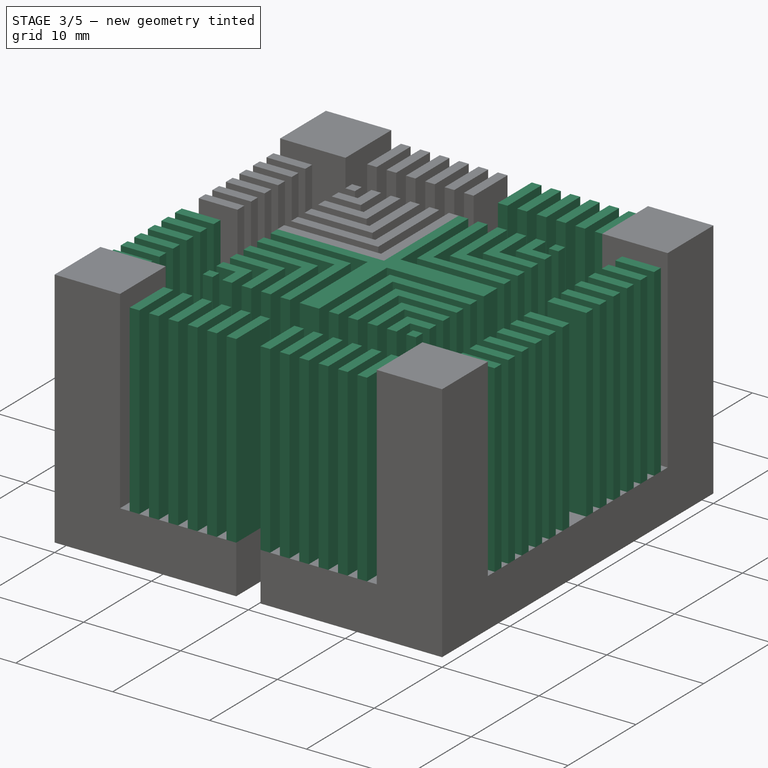
[diagram: stage 3 of 5 — iso view after this stage's code; geometry added in this stage tinted green]
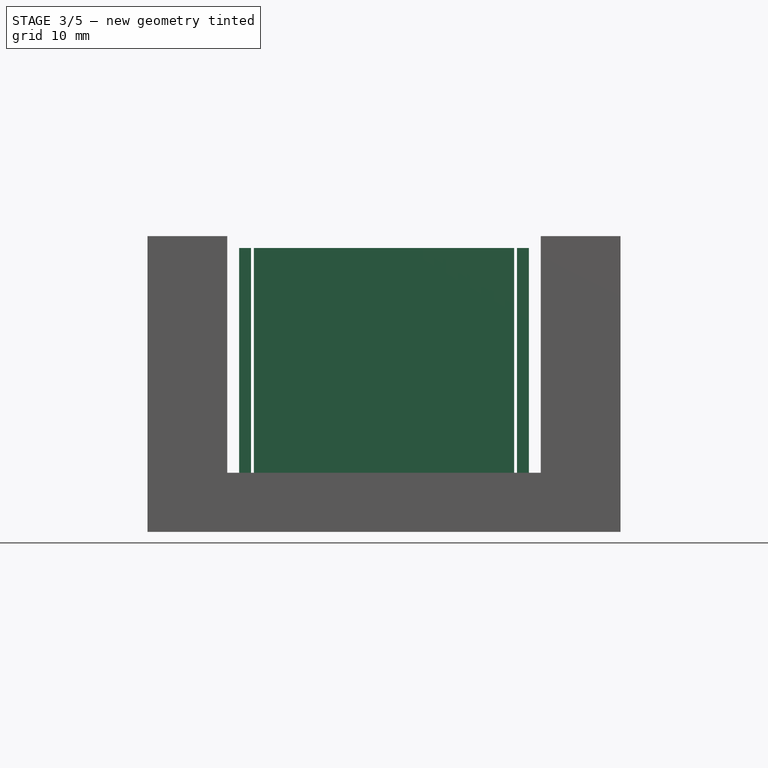
[diagram: stage 3 of 5 — front view after this stage's code; geometry added in this stage tinted green]
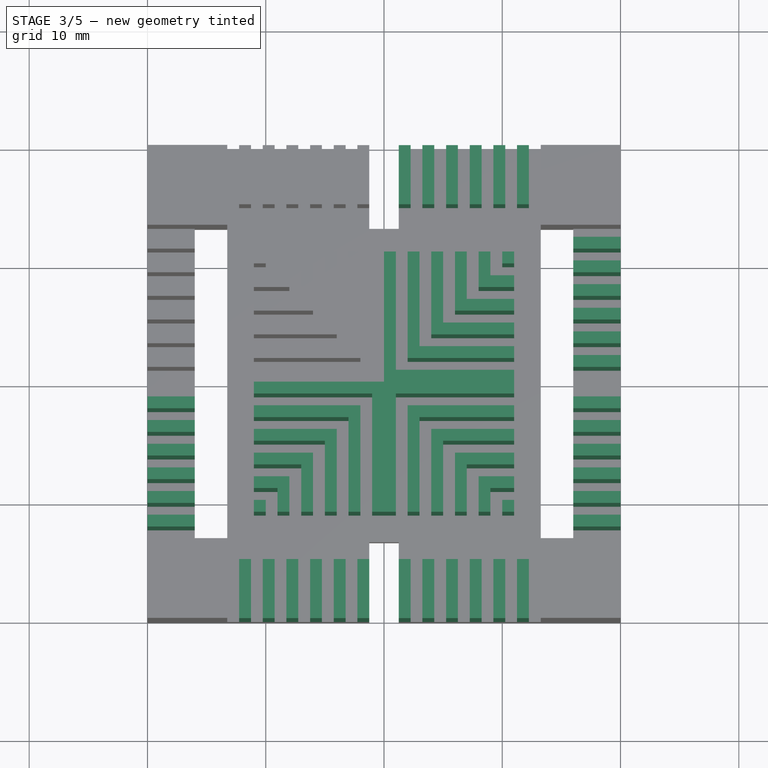
[diagram: stage 3 of 5 — top view after this stage's code; geometry added in this stage tinted green]
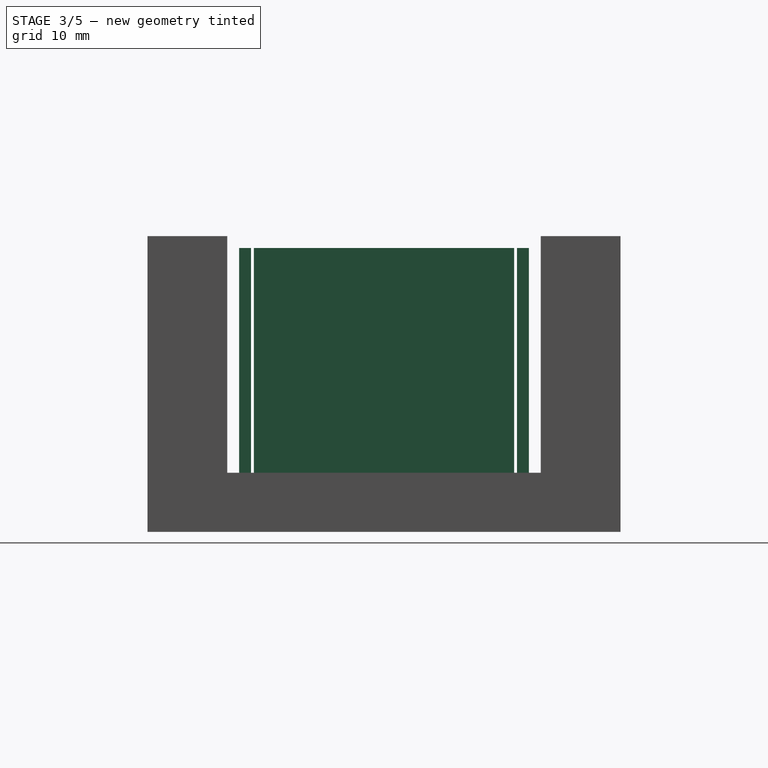
[diagram: stage 3 of 5 — right view after this stage's code; geometry added in this stage tinted green]
FEATURE [PartDesign::Pad] Pad014
  BaseFeature = -> Pad
  Direction = (0,0,1)
  Length = 19
  Length2 = 10
  Profile = -> MirroredSketch004
  ReferenceAxis = -> MirroredSketch004 [N_Axis]
  Type = 0
FEATURE [PartDesign::Pad] Pad015
  BaseFeature = -> Pad014
  Direction = (0,0,1)
  Length = 19
  Length2 = 10
  Profile = -> MirroredSketch005
  ReferenceAxis = -> MirroredSketch005 [N_Axis]
  Type = 0
FEATURE [PartDesign::Pad] Pad016
  BaseFeature = -> Pad015
  Direction = (0,0,1)
  Length = 19
  Length2 = 10
  Profile = -> MirroredSketch006
  ReferenceAxis = -> MirroredSketch006 [N_Axis]
  Type = 0
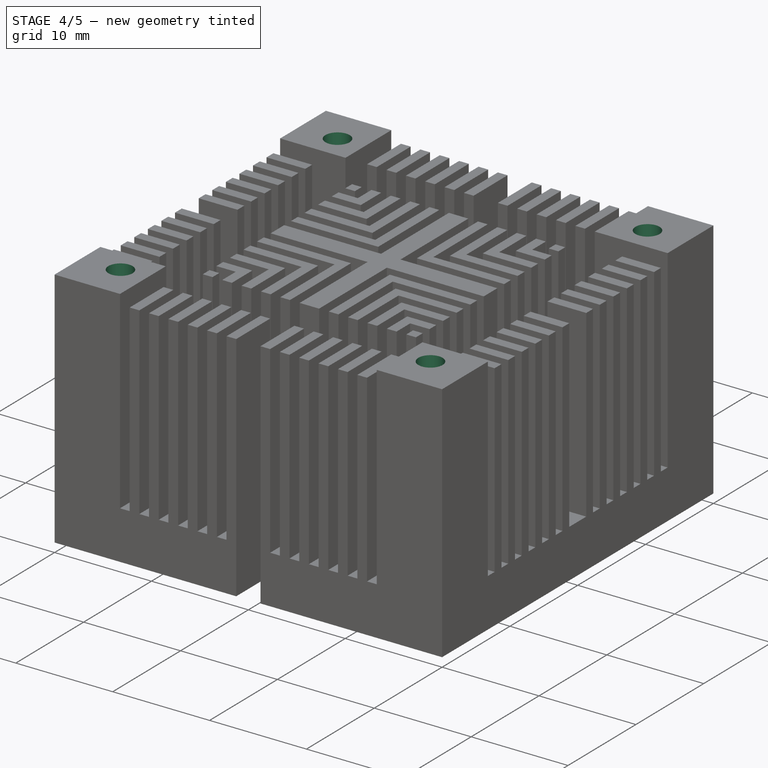
[diagram: stage 4 of 5 — iso view after this stage's code; geometry added in this stage tinted green]
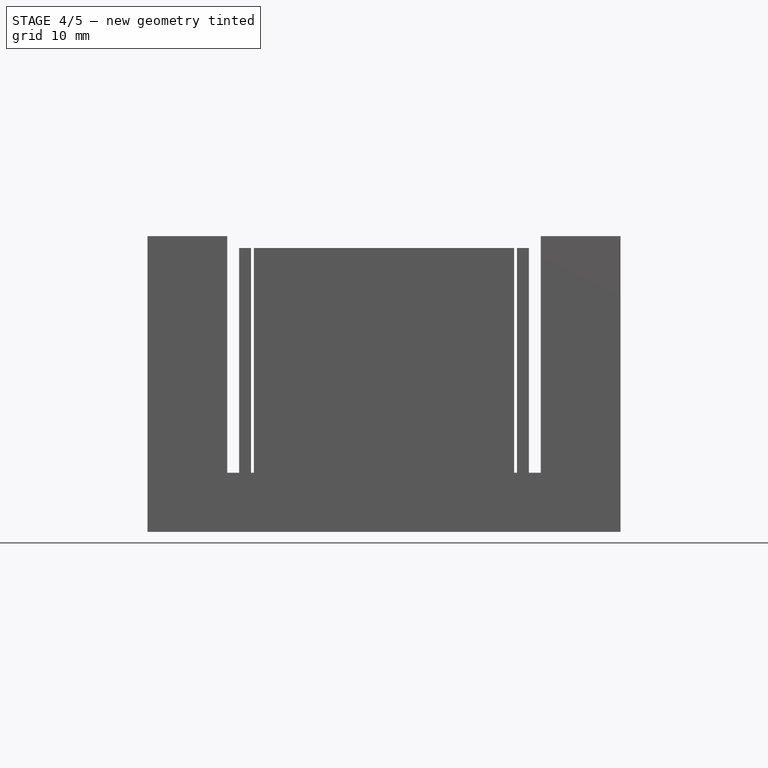
[diagram: stage 4 of 5 — front view after this stage's code; geometry added in this stage tinted green]
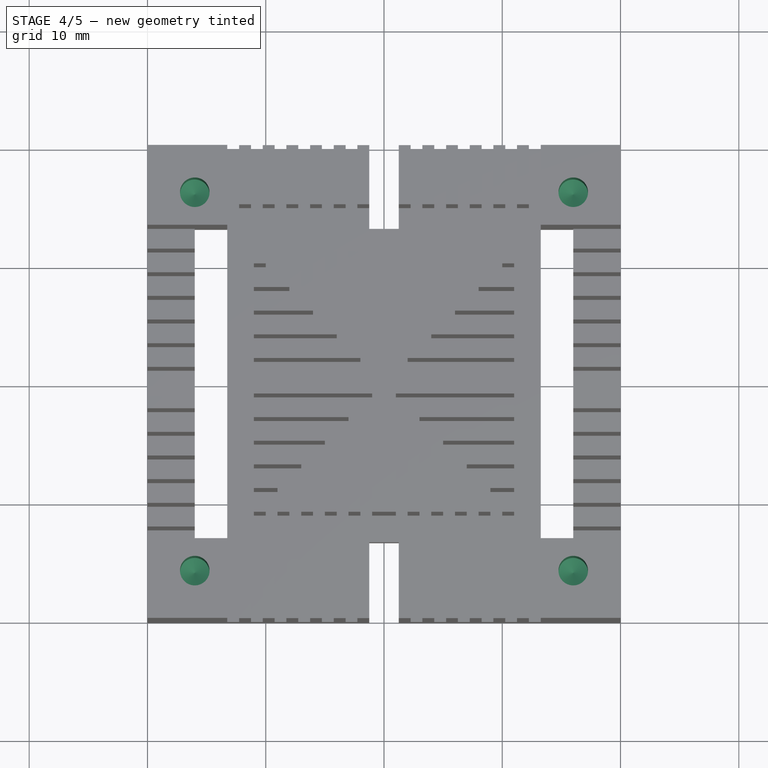
[diagram: stage 4 of 5 — top view after this stage's code; geometry added in this stage tinted green]
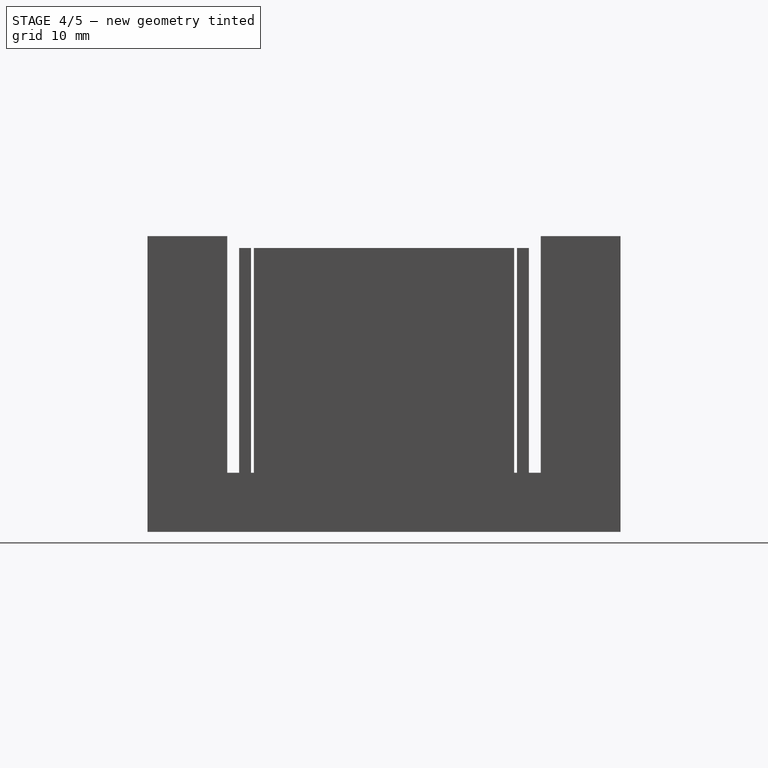
[diagram: stage 4 of 5 — right view after this stage's code; geometry added in this stage tinted green]
FEATURE [Sketcher::SketchObject] Sketch
  FullyConstrained = true
  MapMode = 5
  Placement = pos=(0,0,25) rot=(0,0,1;0rad)
  Support = -> [Pad016]
  sketch-geometry (1):
    g0: Circle CenterX=-16 CenterY=16 CenterZ=0 NormalX=0 NormalY=0 NormalZ=1 AngleXU=0 Radius=1.1
  constraints (3):
    c: DistanceX(g0,g-1) = 16
    c: DistanceY(g-1,g0) = 16
    c: Radius(g0) = 1.1
FEATURE [Sketcher::SketchObject] MirroredSketch007
  FullyConstrained = false
  Placement = pos=(0,0,25) rot=(0,0,1;0rad)
  sketch-geometry (1):
    g0: Circle CenterX=-16 CenterY=-16 CenterZ=0 NormalX=0 NormalY=0 NormalZ=1 AngleXU=0 Radius=1.1
  constraints (1):
    c: Radius(g0) = 1.1
FEATURE [Sketcher::SketchObject] MirroredSketch008
  FullyConstrained = false
  Placement = pos=(0,0,25) rot=(0,0,1;0rad)
  sketch-geometry (1):
    g0: Circle CenterX=16 CenterY=16 CenterZ=0 NormalX=0 NormalY=0 NormalZ=1 AngleXU=0 Radius=1.1
  constraints (1):
    c: Radius(g0) = 1.1
FEATURE [Sketcher::SketchObject] MirroredSketch009
  FullyConstrained = false
  Placement = pos=(0,0,25) rot=(0,0,1;0rad)
  sketch-geometry (1):
    g0: Circle CenterX=16 CenterY=-16 CenterZ=0 NormalX=0 NormalY=0 NormalZ=1 AngleXU=0 Radius=1.1
  constraints (1):
    c: Radius(g0) = 1.1
FEATURE [PartDesign::Hole] Hole
  BaseFeature = -> Pad016
  CustomThreadClearance = 0
  Depth = 10
  DepthType = 0
  Diameter = 2.5
  DrillForDepth = false
  DrillPoint = 1
  DrillPointAngle = 118
  HoleCutCountersinkAngle = 90
  HoleCutCustomValues = false
  HoleCutDepth = 0
  HoleCutDiameter = 6.1
  HoleCutType = 0
  ModelThread = false
  Profile = -> Sketch
  Tapered = false
  TaperedAngle = 90
  ThreadClass = 0
  ThreadDepth = 10
  ThreadDepthType = 0
  ThreadDirection = 0
  ThreadFit = 0
  ThreadSize = 9
  ThreadType = 1
  Threaded = true
  UseCustomThreadClearance = false
FEATURE [PartDesign::Hole] Hole001
  BaseFeature = -> Hole
  CustomThreadClearance = 0
  Depth = 10
  DepthType = 0
  Diameter = 2.5
  DrillForDepth = false
  DrillPoint = 1
  DrillPointAngle = 118
  HoleCutCountersinkAngle = 90
  HoleCutCustomValues = false
  HoleCutDepth = 0
  HoleCutDiameter = 6.1
  HoleCutType = 0
  ModelThread = false
  Profile = -> MirroredSketch007
  Tapered = false
  TaperedAngle = 90
  ThreadClass = 0
  ThreadDepth = 10
  ThreadDepthType = 0
  ThreadDirection = 0
  ThreadFit = 0
  ThreadSize = 9
  ThreadType = 1
  Threaded = true
  UseCustomThreadClearance = false
FEATURE [PartDesign::Hole] Hole002
  BaseFeature = -> Hole001
  CustomThreadClearance = 0
  Depth = 10
  DepthType = 0
  Diameter = 2.5
  DrillForDepth = false
  DrillPoint = 1
  DrillPointAngle = 118
  HoleCutCountersinkAngle = 90
  HoleCutCustomValues = false
  HoleCutDepth = 0
  HoleCutDiameter = 6.1
  HoleCutType = 0
  ModelThread = false
  Profile = -> MirroredSketch008
  Tapered = false
  TaperedAngle = 90
  ThreadClass = 0
  ThreadDepth = 10
  ThreadDepthType = 0
  ThreadDirection = 0
  ThreadFit = 0
  ThreadSize = 9
  ThreadType = 1
  Threaded = true
  UseCustomThreadClearance = false
FEATURE [PartDesign::Hole] Hole003
  BaseFeature = -> Hole002
  CustomThreadClearance = 0
  Depth = 10
  DepthType = 0
  Diameter = 2.5
  DrillForDepth = false
  DrillPoint = 1
  DrillPointAngle = 118
  HoleCutCountersinkAngle = 90
  HoleCutCustomValues = false
  HoleCutDepth = 0
  HoleCutDiameter = 6.1
  HoleCutType = 0
  ModelThread = false
  Profile = -> MirroredSketch009
  Tapered = false
  TaperedAngle = 90
  ThreadClass = 0
  ThreadDepth = 10
  ThreadDepthType = 0
  ThreadDirection = 0
  ThreadFit = 0
  ThreadSize = 9
  ThreadType = 1
  Threaded = true
  UseCustomThreadClearance = false
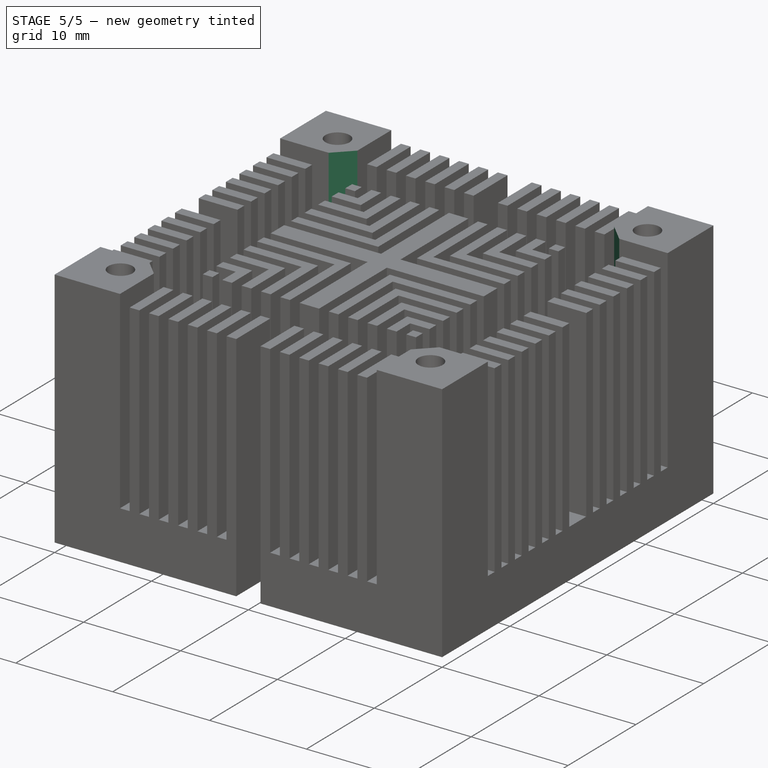
[diagram: stage 5 of 5 — iso view after this stage's code; geometry added in this stage tinted green]
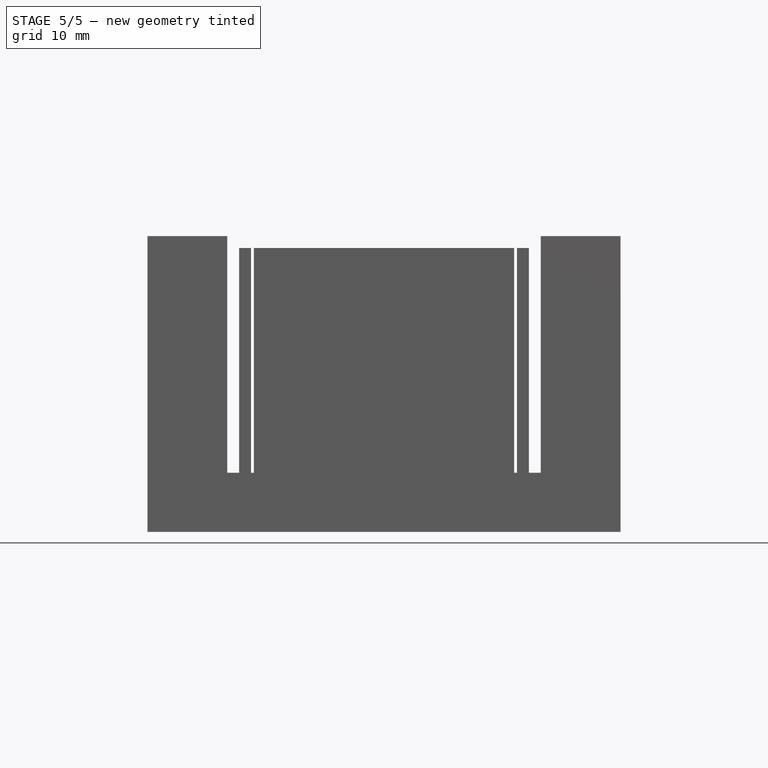
[diagram: stage 5 of 5 — front view after this stage's code; geometry added in this stage tinted green]
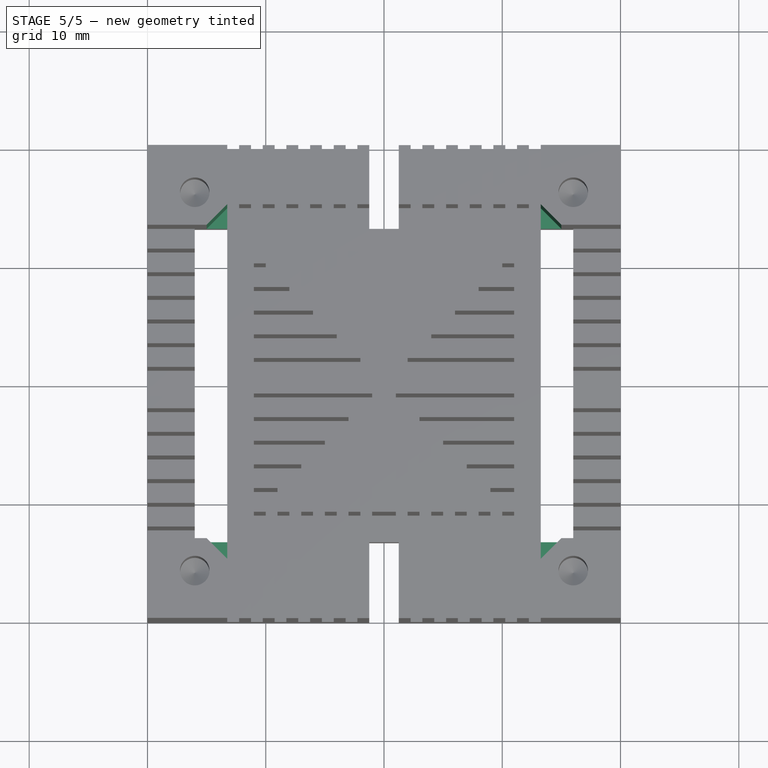
[diagram: stage 5 of 5 — top view after this stage's code; geometry added in this stage tinted green]
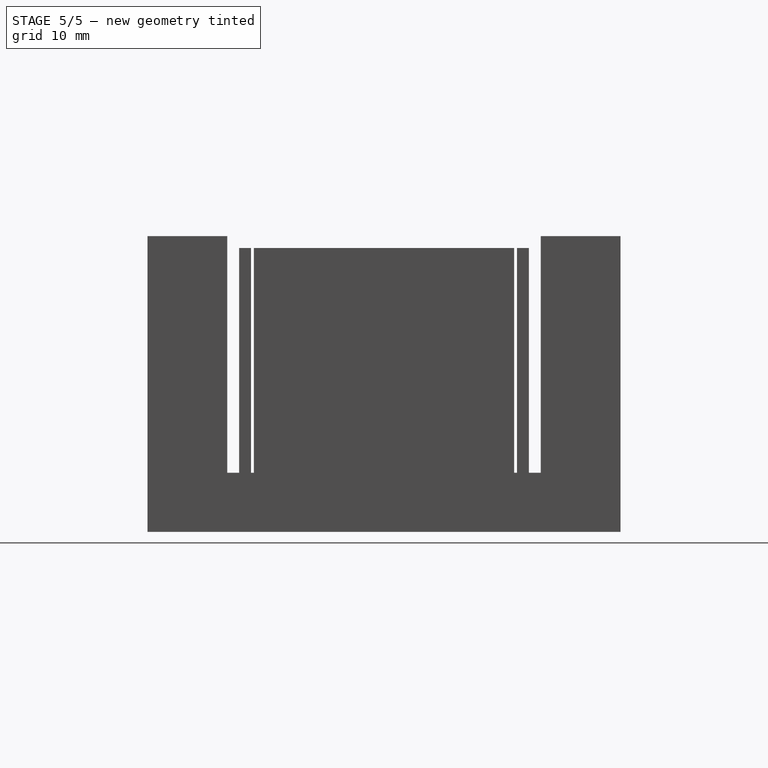
[diagram: stage 5 of 5 — right view after this stage's code; geometry added in this stage tinted green]
FEATURE [Sketcher::SketchObject] Sketch018
  FullyConstrained = true
  MapMode = 5
  Placement = pos=(0,0,25) rot=(0,0,1;0rad)
  Support = -> [Hole003]
  sketch-geometry (3):
    g0: LineSegment StartX=-13.25 StartY=-13.25 StartZ=0 EndX=-15 EndY=-13.25 EndZ=0
    g1: LineSegment StartX=-13.25 StartY=-13.25 StartZ=0 EndX=-13.25 EndY=-15 EndZ=0
    g2: LineSegment StartX=-15 StartY=-13.25 StartZ=0 EndX=-13.25 EndY=-15 EndZ=0
  constraints (9):
    c: Horizontal(g0)
    c: Coincident(g1,g0)
    c: Vertical(g1)
    c: Coincident(g2,g0)
    c: Coincident(g2,g1)
    c: DistanceX(g0,g0) = 1.75
    c: DistanceY(g1,g1) = 1.75
    c: DistanceY(g0,g-1) = 13.25
    c: DistanceX(g0,g-1) = 13.25
FEATURE [Sketcher::SketchObject] MirroredSketch010
  FullyConstrained = false
  Placement = pos=(0,0,25) rot=(0,0,1;0rad)
  sketch-geometry (3):
    g0: LineSegment StartX=13.25 StartY=13.25 StartZ=0 EndX=15 EndY=13.25 EndZ=0
    g1: LineSegment StartX=13.25 StartY=13.25 StartZ=0 EndX=13.25 EndY=15 EndZ=0
    g2: LineSegment StartX=15 StartY=13.25 StartZ=0 EndX=13.25 EndY=15 EndZ=0
  constraints (5):
    c: Horizontal(g0)
    c: Coincident(g1,g0)
    c: Vertical(g1)
    c: Coincident(g2,g0)
    c: Coincident(g2,g1)
FEATURE [Sketcher::SketchObject] MirroredSketch011
  FullyConstrained = false
  Placement = pos=(0,0,25) rot=(0,0,1;0rad)
  sketch-geometry (3):
    g0: LineSegment StartX=-13.25 StartY=13.25 StartZ=0 EndX=-15 EndY=13.25 EndZ=0
    g1: LineSegment StartX=-13.25 StartY=13.25 StartZ=0 EndX=-13.25 EndY=15 EndZ=0
    g2: LineSegment StartX=-15 StartY=13.25 StartZ=0 EndX=-13.25 EndY=15 EndZ=0
  constraints (5):
    c: Horizontal(g0)
    c: Coincident(g1,g0)
    c: Vertical(g1)
    c: Coincident(g2,g0)
    c: Coincident(g2,g1)
FEATURE [Sketcher::SketchObject] MirroredSketch012
  FullyConstrained = false
  Placement = pos=(0,0,25) rot=(0,0,1;0rad)
  sketch-geometry (3):
    g0: LineSegment StartX=13.25 StartY=-13.25 StartZ=0 EndX=15 EndY=-13.25 EndZ=0
    g1: LineSegment StartX=13.25 StartY=-13.25 StartZ=0 EndX=13.25 EndY=-15 EndZ=0
    g2: LineSegment StartX=15 StartY=-13.25 StartZ=0 EndX=13.25 EndY=-15 EndZ=0
  constraints (5):
    c: Horizontal(g0)
    c: Coincident(g1,g0)
    c: Vertical(g1)
    c: Coincident(g2,g0)
    c: Coincident(g2,g1)
FEATURE [PartDesign::Pocket] Pocket002
  BaseFeature = -> Hole003
  Direction = (0,0,-1)
  Length = 20
  Length2 = 5
  Profile = -> Sketch018
  ReferenceAxis = -> Sketch018 [N_Axis]
  Type = 0
FEATURE [PartDesign::Pocket] Pocket003
  BaseFeature = -> Pocket002
  Direction = (0,0,-1)
  Length = 20
  Length2 = 5
  Profile = -> MirroredSketch010
  ReferenceAxis = -> MirroredSketch010 [N_Axis]
  Type = 0
FEATURE [PartDesign::Pocket] Pocket004
  BaseFeature = -> Pocket003
  Direction = (0,0,-1)
  Length = 20
  Length2 = 5
  Profile = -> MirroredSketch011
  ReferenceAxis = -> MirroredSketch011 [N_Axis]
  Type = 0
FEATURE [PartDesign::Pocket] Pocket005
  BaseFeature = -> Pocket004
  Direction = (0,0,-1)
  Length = 20
  Length2 = 5
  Profile = -> MirroredSketch012
  ReferenceAxis = -> MirroredSketch012 [N_Axis]
  Type = 0
FEATURE [PartDesign::Body] Body001
  Group = -> [Sketch014,Pad009,Sketch015,MirroredSketch,Pocket,Pocket001,Sketch016,MirroredSketch001,MirroredSketch002,MirroredSketch003,Pad010,Pad011,Pad012,Pad013,Sketch017,MirroredSketch004,MirroredSketch005,MirroredSketch006,Pad,Pad014,Pad015,Pad016,Sketch,MirroredSketch007,MirroredSketch008,MirroredSketch009,Hole,Hole001,Hole002,Hole003,Sketch018,MirroredSketch010,MirroredSketch011,MirroredSketch012,+4 more]
  Origin = -> Origin002
  Tip = -> Pocket005
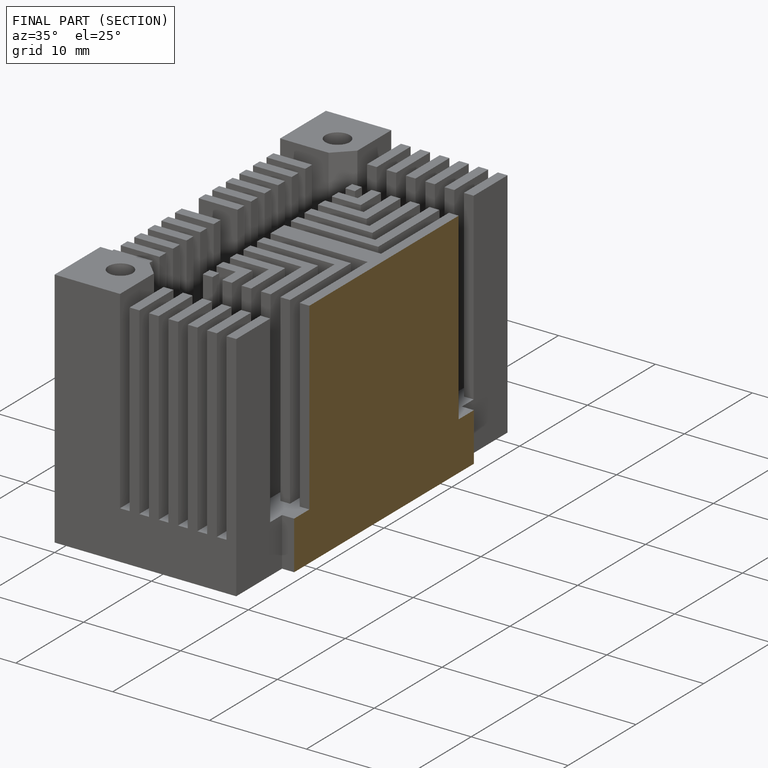
[diagram: finished part — half-section view (interior)]
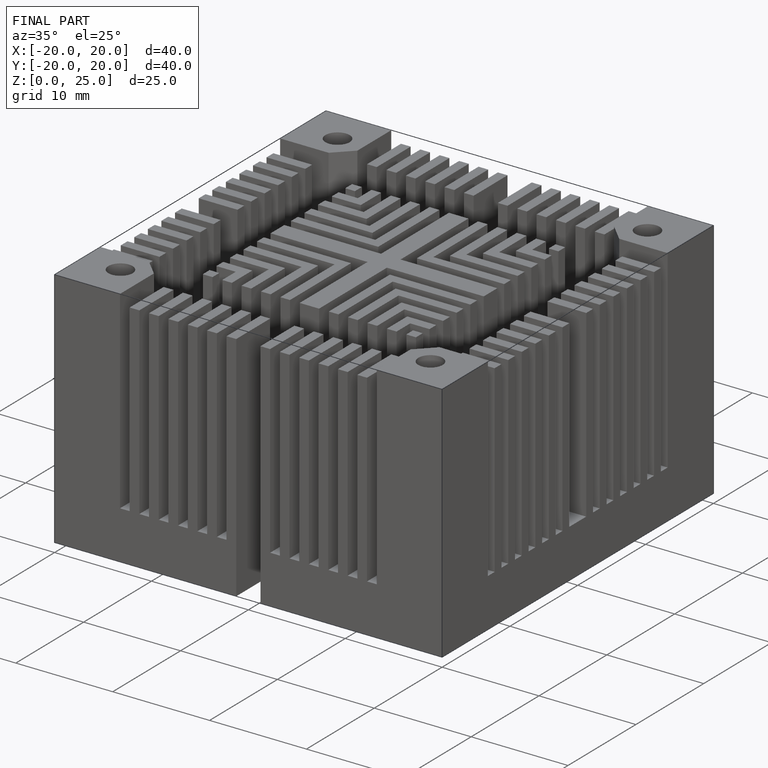
[diagram: finished part — iso view with bounding-box wireframe]
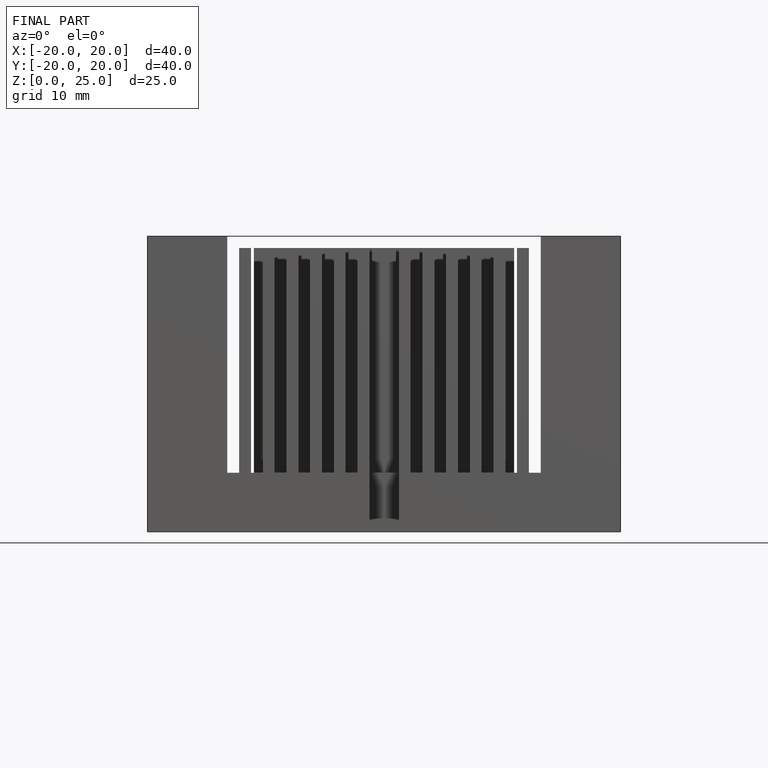
[diagram: finished part — front view with bounding-box wireframe]
